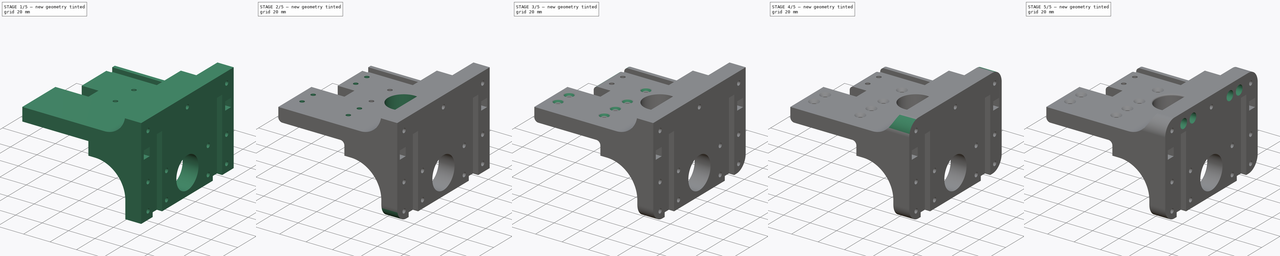
[diagram: build sequence overview — one tinted view per stage of 5, left to right]
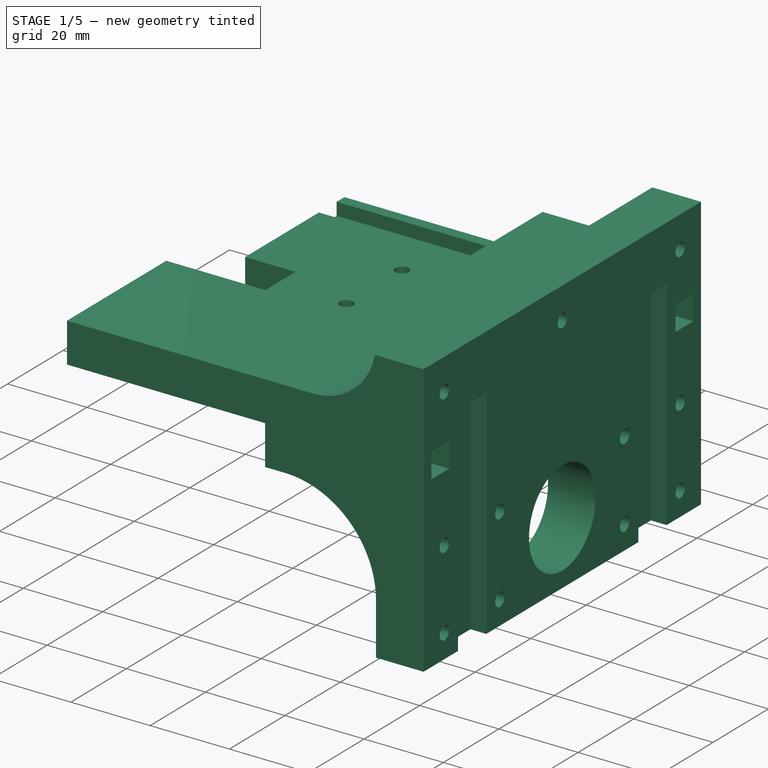
[diagram: stage 1 of 5 — iso view after this stage's code; geometry added in this stage tinted green]
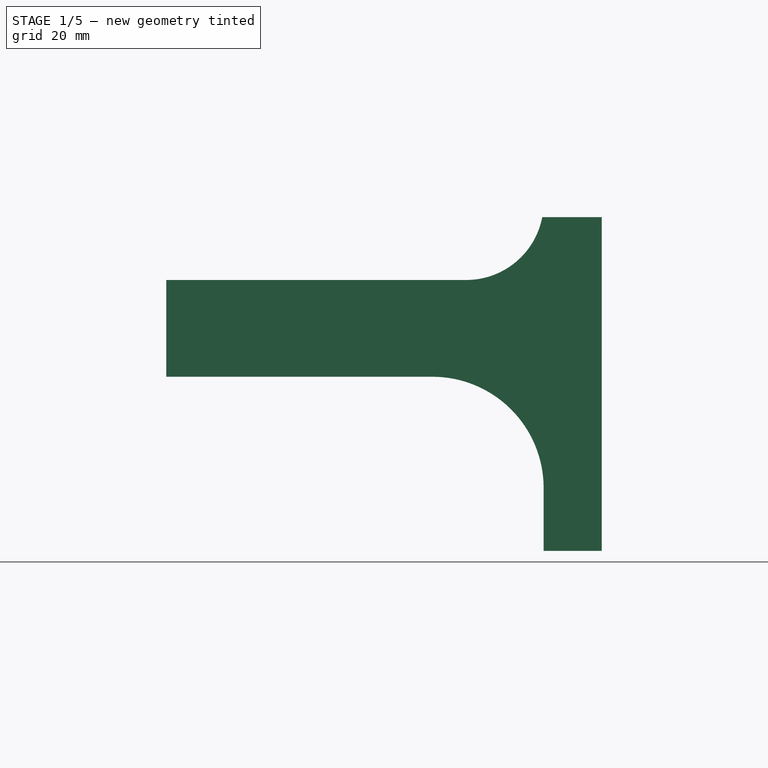
[diagram: stage 1 of 5 — front view after this stage's code; geometry added in this stage tinted green]
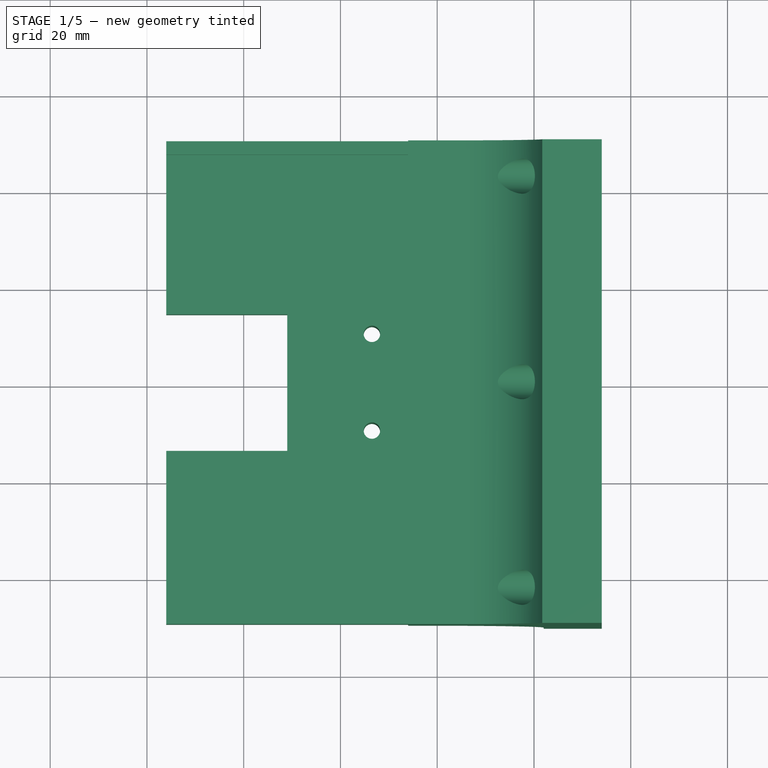
[diagram: stage 1 of 5 — top view after this stage's code; geometry added in this stage tinted green]
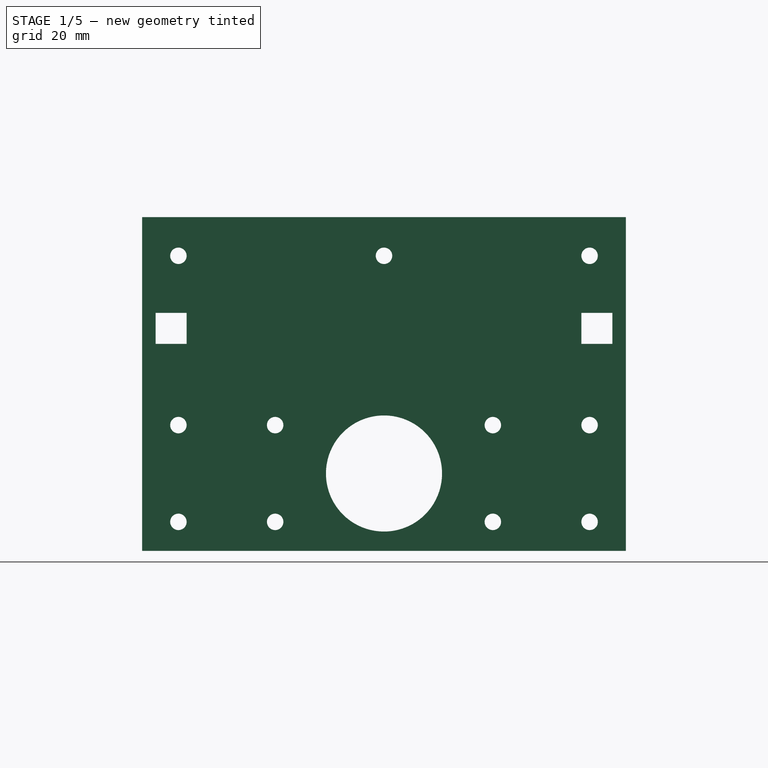
[diagram: stage 1 of 5 — right view after this stage's code; geometry added in this stage tinted green]
FCSTD DOCUMENT  (FreeCAD 0.16R6706 (Git))
Label: PelvisRotationalSym
License: All rights reserved
LicenseURL: http://en.wikipedia.org/wiki/All_rights_reserved
objects: PartDesign::Chamfer×17, PartDesign::Fillet×15, Sketcher::SketchObject×14, PartDesign::Pocket×13, PartDesign::Pad×1
note: 74 computed .brp shape members not serialized (recipe doc carries the construction recipe); baked Part::Feature solids carry a one-line shape summary decoded from their .brp

FEATURE [Sketcher::SketchObject] Sketch001  label="Base Geom"
  Placement = pos=(-86,0,0) rot=(0.57735,-0.57735,-0.57735;2.0944rad)
  sketch-geometry (43):
    g0: LineSegment [constr] StartX=-47.2 StartY=9.2 StartZ=0 EndX=-40.8 EndY=9.2 EndZ=0
    g1: LineSegment [constr] StartX=-40.8 StartY=9.2 StartZ=0 EndX=-40.8 EndY=2.8 EndZ=0
    g2: LineSegment [constr] StartX=-40.8 StartY=2.8 StartZ=0 EndX=-47.2 EndY=2.8 EndZ=0
    g3: LineSegment [constr] StartX=-47.2 StartY=2.8 StartZ=0 EndX=-47.2 EndY=9.2 EndZ=0
    g4: LineSegment [constr] StartX=40.8 StartY=9.2 StartZ=0 EndX=47.2 EndY=9.2 EndZ=0
    g5: LineSegment [constr] StartX=47.2 StartY=9.2 StartZ=0 EndX=47.2 EndY=2.8 EndZ=0
    g6: LineSegment [constr] StartX=47.2 StartY=2.8 StartZ=0 EndX=40.8 EndY=2.8 EndZ=0
    g7: LineSegment [constr] StartX=40.8 StartY=2.8 StartZ=0 EndX=40.8 EndY=9.2 EndZ=0
    g8: GeomPoint [constr] X=-44 Y=6 Z=0
    g9: GeomPoint [constr] X=44 Y=6 Z=0
    g10: Circle [constr] CenterX=-30 CenterY=21 CenterZ=0 NormalX=0 NormalY=0 NormalZ=1 Radius=1.7
    g11: Circle [constr] CenterX=30 CenterY=21 CenterZ=0 NormalX=0 NormalY=0 NormalZ=1 Radius=1.7
    g12: Circle [constr] CenterX=20 CenterY=21 CenterZ=0 NormalX=0 NormalY=0 NormalZ=1 Radius=1.7
    g13: Circle [constr] CenterX=-20 CenterY=21 CenterZ=0 NormalX=0 NormalY=0 NormalZ=1 Radius=1.7
    g14: LineSegment [constr] StartX=-30 StartY=21 StartZ=0 EndX=30 EndY=21 EndZ=0
    g15: LineSegment StartX=-50 StartY=29 StartZ=0 EndX=50 EndY=29 EndZ=0
    g16: LineSegment StartX=50 StartY=29 StartZ=0 EndX=50 EndY=-40 EndZ=0
    g17: LineSegment StartX=50 StartY=-40 StartZ=0 EndX=-50 EndY=-40 EndZ=0
    g18: LineSegment StartX=-50 StartY=-40 StartZ=0 EndX=-50 EndY=29 EndZ=0
    g19: Circle CenterX=0 CenterY=-24 CenterZ=0 NormalX=0 NormalY=0 NormalZ=1 Radius=12
    g20: Circle [constr] CenterX=10 CenterY=12 CenterZ=0 NormalX=0 NormalY=0 NormalZ=1 Radius=8
    g21: Circle CenterX=42.5 CenterY=-14 CenterZ=0 NormalX=0 NormalY=0 NormalZ=1 Radius=1.7
    g22: Circle CenterX=42.5 CenterY=-34 CenterZ=0 NormalX=0 NormalY=0 NormalZ=1 Radius=1.7
    g23: Circle CenterX=22.5 CenterY=-14 CenterZ=0 NormalX=0 NormalY=0 NormalZ=1 Radius=1.7
    g24: Circle CenterX=22.5 CenterY=-34 CenterZ=0 NormalX=0 NormalY=0 NormalZ=1 Radius=1.7
    g25: Circle CenterX=-22.5 CenterY=-14 CenterZ=0 NormalX=0 NormalY=0 NormalZ=1 Radius=1.7
    g26: Circle CenterX=-42.5 CenterY=-14 CenterZ=0 NormalX=0 NormalY=0 NormalZ=1 Radius=1.7
    g27: Circle CenterX=-42.5 CenterY=-34 CenterZ=0 NormalX=0 NormalY=0 NormalZ=1 Radius=1.7
    g28: Circle CenterX=-22.5 CenterY=-34 CenterZ=0 NormalX=0 NormalY=0 NormalZ=1 Radius=1.7
    g29: LineSegment [constr] StartX=42.5 StartY=-14 StartZ=0 EndX=-42.5 EndY=-14 EndZ=0
    g30: LineSegment [constr] StartX=-42.5 StartY=-14 StartZ=0 EndX=-42.5 EndY=-34 EndZ=0
    g31: LineSegment [constr] StartX=-42.5 StartY=-34 StartZ=0 EndX=42.5 EndY=-34 EndZ=0
    g32: LineSegment [constr] StartX=42.5 StartY=-34 StartZ=0 EndX=42.5 EndY=-14 EndZ=0
    g33: LineSegment [constr] StartX=-22.5 StartY=-34 StartZ=0 EndX=-22.5 EndY=-14 EndZ=0
    g34: LineSegment [constr] StartX=22.5 StartY=-14 StartZ=0 EndX=22.5 EndY=-34 EndZ=0
    g35: GeomPoint [constr] X=-32.5 Y=-14 Z=0
    g36: GeomPoint [constr] X=32.5 Y=-14 Z=0
    g37: Circle CenterX=-42.5 CenterY=21 CenterZ=0 NormalX=0 NormalY=0 NormalZ=1 Radius=1.7
    g38: Circle CenterX=42.5 CenterY=21 CenterZ=0 NormalX=0 NormalY=0 NormalZ=1 Radius=1.7
    g39: LineSegment [constr] StartX=42.5 StartY=-14 StartZ=0 EndX=42.5 EndY=21 EndZ=0
    g40: LineSegment [constr] StartX=30 StartY=21 StartZ=0 EndX=42.5 EndY=21 EndZ=0
    g41: Circle CenterX=0 CenterY=21 CenterZ=0 NormalX=0 NormalY=0 NormalZ=1 Radius=1.7
    g42: Circle [constr] CenterX=-10 CenterY=12 CenterZ=0 NormalX=0 NormalY=0 NormalZ=1 Radius=8
  constraints (107):
    c: Coincident(g0,g1)
    c: Coincident(g1,g2)
    c: Coincident(g2,g3)
    c: Coincident(g3,g0)
    c: Horizontal(g0)
    c: Horizontal(g2)
    c: Vertical(g1)
    c: Vertical(g3)
    c: Coincident(g4,g5)
    c: Coincident(g5,g6)
    c: Coincident(g6,g7)
    c: Coincident(g7,g4)
    c: Horizontal(g4)
    c: Horizontal(g6)
    c: Vertical(g5)
    c: Vertical(g7)
    c: Symmetric(g4,g0,g-2)
    c: Symmetric(g6,g1,g-2)
    c: Equal(g7,g4)
    c: DistanceY(g5,g5) = 6.4
    c: Symmetric(g2,g0,g8)
    c: Symmetric(g4,g6,g9)
    c: DistanceX(g8,g9) = 88
    c: Radius(g10) = 1.7
    c: Equal(g10,g13)
    c: Equal(g10,g12)
    c: Equal(g10,g11)
    c: Coincident(g14,g11)
    c: PointOnObject(g12,g14)
    c: PointOnObject(g13,g14)
    c: Coincident(g10,g14)
    c: Symmetric(g13,g12,g-2)
    c: DistanceX(g13,g12) = 40
    c: DistanceX(g10,g11) = 60
    c: Symmetric(g10,g11,g-2)
    c: DistanceY(g8,g10) = 15
    c: Coincident(g15,g16)
    c: Coincident(g16,g17)
    c: Coincident(g17,g18)
    c: Coincident(g18,g15)
    c: Horizontal(g15)
    c: Horizontal(g17)
    c: Vertical(g16)
    c: Vertical(g18)
    c: DistanceY(g-1,g8) = 6
    c: Symmetric(g17,g16,g-2)
    c: DistanceX(g17,g16) = 100
    c: DistanceY(g16,g-1) = 40
    c: DistanceY(g-1,g15) = 29
    c: PointOnObject(g19,g-2)
    c: DistanceY(g-1,g20) = 12
    c: Radius(g20) = 8
    c: DistanceY(g19,g-1) = 24
    c: Radius(g19) = 12
    c: Coincident(g29,g30)
    c: Coincident(g30,g31)
    c: Coincident(g31,g32)
    c: Coincident(g32,g29)
    c: Horizontal(g29)
    c: Vertical(g30)
    c: Vertical(g32)
    c: Coincident(g29,g21)
    c: Coincident(g30,g27)
    c: Coincident(g29,g26)
    c: Coincident(g22,g31)
    c: Coincident(g33,g28)
    c: Coincident(g33,g25)
    c: Vertical(g33)
    c: Coincident(g34,g23)
    c: Coincident(g34,g24)
    c: Vertical(g34)
    c: PointOnObject(g24,g31)
    c: PointOnObject(g23,g29)
    c: PointOnObject(g25,g29)
    c: PointOnObject(g28,g31)
    c: Radius(g27) = 1.7
    c: Equal(g27,g26)
    c: Equal(g27,g25)
    c: Equal(g27,g28)
    c: Equal(g27,g23)
    c: Equal(g27,g24)
    c: Equal(g27,g21)
    c: Equal(g27,g22)
    c: Symmetric(g28,g24,g-2)
    c: Symmetric(g27,g22,g-2)
    c: DistanceX(g24,g22) = 20
    c: DistanceY(g22,g21) = 20
    c: Symmetric(g25,g26,g35)
    c: Symmetric(g21,g23,g36)
    c: DistanceX(g35,g36) = 65
    c: DistanceY(g25,g-1) = 14
    c: Vertical(g39)
    c: Coincident(g21,g39)
    c: Coincident(g38,g39)
    c: Symmetric(g37,g38,g-2)
    c: Radius(g38) = 1.7
    c: Equal(g38,g37)
    c: Coincident(g40,g11)
    c: Coincident(g40,g38)
    c: Horizontal(g40)
    c: DistanceY(g21,g38) = 35
    c: Equal(g41,g12)
    c: Equal(g42,g20)
    c: Symmetric(g42,g20,g-2)
    c: DistanceX(g42,g20) = 20
    c: PointOnObject(g41,g-2)
    c: PointOnObject(g41,g14)
FEATURE [PartDesign::Pad] Pad
  Length = 90
  Length2 = 100
  Placement = pos=(-86,0,0) rot=(0.57735,-0.57735,-0.57735;2.0944rad)
  Sketch = -> Sketch001
  Type = 0
FEATURE [Sketcher::SketchObject] Sketch004  label="Grooves"
  Placement = pos=(-86,0,0) rot=(-0.57735,0.57735,-0.57735;2.0944rad)
  Support = -> Pad [Face17]
  sketch-geometry (12):
    g0: LineSegment StartX=-37.6 StartY=85 StartZ=0 EndX=-27.4 EndY=85 EndZ=0
    g1: LineSegment StartX=-27.4 StartY=85 StartZ=0 EndX=-27.4 EndY=-15 EndZ=0
    g2: LineSegment StartX=-27.4 StartY=-15 StartZ=0 EndX=-37.6 EndY=-15 EndZ=0
    g3: LineSegment StartX=-37.6 StartY=-15 StartZ=0 EndX=-37.6 EndY=85 EndZ=0
    g4: LineSegment StartX=27.4 StartY=85 StartZ=0 EndX=37.6 EndY=85 EndZ=0
    g5: LineSegment StartX=37.6 StartY=85 StartZ=0 EndX=37.6 EndY=-15 EndZ=0
    g6: LineSegment StartX=37.6 StartY=-15 StartZ=0 EndX=27.4 EndY=-15 EndZ=0
    g7: LineSegment StartX=27.4 StartY=-15 StartZ=0 EndX=27.4 EndY=85 EndZ=0
    g8: LineSegment [constr] StartX=-27.4 StartY=-15 StartZ=0 EndX=27.4 EndY=-15 EndZ=0
    g9: LineSegment [constr] StartX=-27.4 StartY=85 StartZ=0 EndX=27.4 EndY=85 EndZ=0
    g10: GeomPoint [constr] X=-32.5 Y=85 Z=0
    g11: GeomPoint [constr] X=32.5 Y=85 Z=0
  constraints (30):
    c: Coincident(g0,g1)
    c: Coincident(g1,g2)
    c: Coincident(g2,g3)
    c: Coincident(g3,g0)
    c: Horizontal(g0)
    c: Horizontal(g2)
    c: Vertical(g1)
    c: Vertical(g3)
    c: Coincident(g4,g5)
    c: Coincident(g5,g6)
    c: Coincident(g6,g7)
    c: Coincident(g7,g4)
    c: Horizontal(g4)
    c: Horizontal(g6)
    c: Vertical(g5)
    c: Vertical(g7)
    c: DistanceX(g0,g0) = 10.2
    c: DistanceX(g4,g4) = 10.2
    c: Coincident(g8,g1)
    c: Horizontal(g8)
    c: Coincident(g6,g8)
    c: Coincident(g9,g0)
    c: Horizontal(g9)
    c: Coincident(g9,g4)
    c: DistanceY(g1,g-1) = 15
    c: DistanceY(g2,g0) = 100
    c: Symmetric(g4,g4,g11)
    c: Symmetric(g0,g0,g10)
    c: DistanceX(g10,g11) = 65
    c: Symmetric(g4,g0,g-2)
FEATURE [PartDesign::Pocket] Pocket
  Length = 4
  Placement = pos=(-86,0,0) rot=(0.57735,-0.57735,-0.57735;2.0944rad)
  Sketch = -> Sketch004
  Type = 0
FEATURE [Sketcher::SketchObject] Sketch  label="CF holes"
  Placement = pos=(-86,0,0) rot=(0.57735,-0.57735,0.57735;4.18879rad)
  Support = -> Pocket [Face4]
  sketch-geometry (10):
    g0: LineSegment StartX=-47.2 StartY=-2.8 StartZ=0 EndX=-40.8 EndY=-2.8 EndZ=0
    g1: LineSegment StartX=-40.8 StartY=-2.8 StartZ=0 EndX=-40.8 EndY=-9.2 EndZ=0
    g2: LineSegment StartX=-40.8 StartY=-9.2 StartZ=0 EndX=-47.2 EndY=-9.2 EndZ=0
    g3: LineSegment StartX=-47.2 StartY=-9.2 StartZ=0 EndX=-47.2 EndY=-2.8 EndZ=0
    g4: LineSegment StartX=40.8 StartY=-2.8 StartZ=0 EndX=47.2 EndY=-2.8 EndZ=0
    g5: LineSegment StartX=47.2 StartY=-2.8 StartZ=0 EndX=47.2 EndY=-9.2 EndZ=0
    g6: LineSegment StartX=47.2 StartY=-9.2 StartZ=0 EndX=40.8 EndY=-9.2 EndZ=0
    g7: LineSegment StartX=40.8 StartY=-9.2 StartZ=0 EndX=40.8 EndY=-2.8 EndZ=0
    g8: GeomPoint [constr] X=-44 Y=-6 Z=0
    g9: GeomPoint [constr] X=44 Y=-6 Z=0
  constraints (25):
    c: Coincident(g0,g1)
    c: Coincident(g1,g2)
    c: Coincident(g2,g3)
    c: Coincident(g3,g0)
    c: Horizontal(g0)
    c: Horizontal(g2)
    c: Vertical(g1)
    c: Vertical(g3)
    c: Coincident(g4,g5)
    c: Coincident(g5,g6)
    c: Coincident(g6,g7)
    c: Coincident(g7,g4)
    c: Horizontal(g4)
    c: Horizontal(g6)
    c: Vertical(g5)
    c: Vertical(g7)
    c: Equal(g2,g1)
    c: Equal(g7,g6)
    c: Symmetric(g2,g0,g8)
    c: Symmetric(g4,g6,g9)
    c: Symmetric(g8,g9,g-2)
    c: DistanceX(g8,g9) = 88
    c: DistanceY(g8,g-1) = 6
    c: DistanceY(g3,g3) = 6.4
    c: Equal(g5,g1)
FEATURE [PartDesign::Pocket] Pocket001
  Length = 50
  Placement = pos=(-86,0,0) rot=(0.57735,-0.57735,-0.57735;2.0944rad)
  Sketch = -> Sketch
  Type = 1
FEATURE [Sketcher::SketchObject] Sketch005  label="sidecut pass"
  Placement = pos=(-86,50,0) rot=(0.57735,-0.57735,-0.57735;4.18879rad)
  Support = -> Pocket001 [Face2]
  sketch-geometry (26):
    g0: LineSegment StartX=54 StartY=90 StartZ=0 EndX=54 EndY=12 EndZ=0
    g1: LineSegment StartX=54 StartY=12 StartZ=0 EndX=27 EndY=12 EndZ=0
    g2: LineSegment StartX=4 StartY=35 StartZ=0 EndX=4 EndY=90 EndZ=0
    g3: LineSegment StartX=-16 StartY=90 StartZ=0 EndX=-16 EndY=28 EndZ=0
    g4: LineSegment StartX=-32 StartY=12 StartZ=0 EndX=-66 EndY=12 EndZ=0
    g5: LineSegment StartX=-66 StartY=12 StartZ=0 EndX=-66 EndY=90 EndZ=0
    g6: LineSegment [constr] StartX=-16 StartY=90 StartZ=0 EndX=4 EndY=90 EndZ=0
    g7: ArcOfCircle CenterX=27 CenterY=35 CenterZ=0 NormalX=0 NormalY=0 NormalZ=1 Radius=23 StartAngle=3.14159 EndAngle=4.71239
    g8: ArcOfCircle CenterX=-32 CenterY=28 CenterZ=0 NormalX=0 NormalY=0 NormalZ=1 Radius=16 StartAngle=4.71239 EndAngle=6.28319
    g9: LineSegment [constr] StartX=-32 StartY=12 StartZ=0 EndX=27 EndY=12 EndZ=0
    g10: LineSegment StartX=-66 StartY=90 StartZ=0 EndX=-16 EndY=90 EndZ=0
    g11: LineSegment StartX=4 StartY=90 StartZ=0 EndX=54 EndY=90 EndZ=0
    g12: LineSegment [constr] StartX=-16 StartY=90 StartZ=0 EndX=-16 EndY=90 EndZ=0
    g13: LineSegment [constr] StartX=4 StartY=90 StartZ=0 EndX=4 EndY=90 EndZ=0
    g14: LineSegment [constr] StartX=-16 StartY=90 StartZ=0 EndX=4 EndY=90 EndZ=0
    g15: LineSegment [constr] StartX=-66 StartY=12 StartZ=0 EndX=-66 EndY=-12 EndZ=0
    g16: LineSegment [constr] StartX=-16 StartY=73 StartZ=0 EndX=-16 EndY=12 EndZ=0
    g17: LineSegment [constr] StartX=-16 StartY=12 StartZ=0 EndX=-16 EndY=0 EndZ=0
    g18: LineSegment [constr] StartX=-16 StartY=0 StartZ=0 EndX=-2e-12 EndY=0 EndZ=0
    g19: LineSegment [constr] StartX=-72 StartY=-12 StartZ=0 EndX=54 EndY=-12 EndZ=0
    g20: LineSegment [constr] StartX=54 StartY=-12 StartZ=0 EndX=54 EndY=-1 EndZ=0
    g21: LineSegment [constr] StartX=54 StartY=-1 StartZ=0 EndX=-72 EndY=-1 EndZ=0
    g22: LineSegment [constr] StartX=-72 StartY=-1 StartZ=0 EndX=-72 EndY=-12 EndZ=0
    g23: LineSegment [constr] StartX=54 StartY=12 StartZ=0 EndX=54 EndY=-3.1e-11 EndZ=0
    g24: LineSegment [constr] StartX=54 StartY=-1 StartZ=0 EndX=54 EndY=-3.1e-11 EndZ=0
    g25: LineSegment [constr] StartX=14.2584 StartY=90 StartZ=0 EndX=14.2584 EndY=35 EndZ=0
  constraints (71):
    c: Coincident(g0,g1)
    c: Horizontal(g1)
    c: Vertical(g0)
    c: Vertical(g2)
    c: Coincident(g4,g5)
    c: Horizontal(g4)
    c: Vertical(g3)
    c: Vertical(g5)
    c: Horizontal(g6)
    c: Tangent(g2,g7) = 1.5708
    c: Tangent(g1,g7) = 1.5708
    c: Tangent(g3,g8) = 1.5708
    c: Tangent(g4,g8) = 1.5708
    c: Coincident(g9,g4)
    c: Coincident(g9,g1)
    c: Horizontal(g9)
    c: DistanceY(g-1,g1) = 12
    c: Coincident(g10,g5)
    c: Horizontal(g10)
    c: Horizontal(g11)
    c: Coincident(g12,g6)
    c: Coincident(g12,g3)
    c: Vertical(g12)
    c: Coincident(g13,g6)
    c: Coincident(g13,g2)
    c: Vertical(g13)
    c: DistanceX(g2,g7) = 23
    c: DistanceX(g8,g3) = 16
    c: Coincident(g0,g11)
    c: Coincident(g14,g10)
    c: Horizontal(g14)
    c: Coincident(g14,g11)
    c: DistanceY(g15,g4) = 24
    c: Coincident(g15,g4)
    c: Vertical(g15)
    c: DistanceX(g11,g11) = 50
    c: PointOnObject(g16,g3)
    c: PointOnObject(g16,g9)
    c: Vertical(g16)
    c: DistanceX(g6,g6) = 20
    c: Coincident(g17,g16)
    c: PointOnObject(g17,g-1)
    c: Vertical(g17)
    c: Coincident(g18,g17)
    c: Coincident(g18,g-1)
    c: DistanceX(g18,g18) = 16
    c: Coincident(g19,g20)
    c: Coincident(g20,g21)
    c: Coincident(g21,g22)
    c: Coincident(g22,g19)
    c: Horizontal(g19)
    c: Horizontal(g21)
    c: Vertical(g20)
    c: Vertical(g22)
    c: Coincident(g23,g0)
    c: PointOnObject(g23,g-1)
    c: Vertical(g23)
    c: Coincident(g24,g20)
    c: Coincident(g24,g23)
    c: DistanceY(g24,g24) = 1
    c: Vertical(g24)
    c: Equal(g10,g11)
    c: PointOnObject(g6,g14)
    c: PointOnObject(g2,g14)
    c: PointOnObject(g3,g6)
    c: PointOnObject(g10,g3)
    c: PointOnObject(g11,g2)
    c: DistanceY(g23,g0) = 90
    c: PointOnObject(g25,g11)
    c: Vertical(g25)
    c: DistanceY(g25,g25) = 55
FEATURE [PartDesign::Pocket] Pocket002
  Length = 5
  Placement = pos=(-86,0,0) rot=(0.57735,-0.57735,-0.57735;2.0944rad)
  Sketch = -> Sketch005
  Type = 1
FEATURE [Sketcher::SketchObject] Sketch007  label="counter sunk holes from above"
  Placement = pos=(-176,0,0) rot=(0.57735,-0.57735,-0.57735;2.0944rad)
  Support = -> Pocket002 [Face36]
  sketch-geometry (43):
    g0: LineSegment [constr] StartX=-47.2 StartY=9.2 StartZ=0 EndX=-40.8 EndY=9.2 EndZ=0
    g1: LineSegment [constr] StartX=-40.8 StartY=9.2 StartZ=0 EndX=-40.8 EndY=2.8 EndZ=0
    g2: LineSegment [constr] StartX=-40.8 StartY=2.8 StartZ=0 EndX=-47.2 EndY=2.8 EndZ=0
    g3: LineSegment [constr] StartX=-47.2 StartY=2.8 StartZ=0 EndX=-47.2 EndY=9.2 EndZ=0
    g4: LineSegment [constr] StartX=40.8 StartY=9.2 StartZ=0 EndX=47.2 EndY=9.2 EndZ=0
    g5: LineSegment [constr] StartX=47.2 StartY=9.2 StartZ=0 EndX=47.2 EndY=2.8 EndZ=0
    g6: LineSegment [constr] StartX=47.2 StartY=2.8 StartZ=0 EndX=40.8 EndY=2.8 EndZ=0
    g7: LineSegment [constr] StartX=40.8 StartY=2.8 StartZ=0 EndX=40.8 EndY=9.2 EndZ=0
    g8: GeomPoint [constr] X=-44 Y=6 Z=0
    g9: GeomPoint [constr] X=44 Y=6 Z=0
    g10: Circle [constr] CenterX=-30 CenterY=21 CenterZ=0 NormalX=0 NormalY=0 NormalZ=1 Radius=1.7
    g11: Circle [constr] CenterX=30 CenterY=21 CenterZ=0 NormalX=0 NormalY=0 NormalZ=1 Radius=1.7
    g12: Circle [constr] CenterX=20 CenterY=21 CenterZ=0 NormalX=0 NormalY=0 NormalZ=1 Radius=1.7
    g13: Circle [constr] CenterX=-20 CenterY=21 CenterZ=0 NormalX=0 NormalY=0 NormalZ=1 Radius=1.7
    g14: LineSegment [constr] StartX=-30 StartY=21 StartZ=0 EndX=30 EndY=21 EndZ=0
    g15: LineSegment [constr] StartX=-50 StartY=29 StartZ=0 EndX=50 EndY=29 EndZ=0
    g16: LineSegment [constr] StartX=50 StartY=29 StartZ=0 EndX=50 EndY=-40 EndZ=0
    g17: LineSegment [constr] StartX=50 StartY=-40 StartZ=0 EndX=-50 EndY=-40 EndZ=0
    g18: LineSegment [constr] StartX=-50 StartY=-40 StartZ=0 EndX=-50 EndY=29 EndZ=0
    g19: Circle [constr] CenterX=0 CenterY=-24 CenterZ=0 NormalX=0 NormalY=0 NormalZ=1 Radius=12
    g20: Circle [constr] CenterX=10 CenterY=12 CenterZ=0 NormalX=0 NormalY=0 NormalZ=1 Radius=8
    g21: Circle CenterX=42.5 CenterY=-14 CenterZ=0 NormalX=0 NormalY=0 NormalZ=1 Radius=3.6
    g22: Circle CenterX=42.5 CenterY=-34 CenterZ=0 NormalX=0 NormalY=0 NormalZ=1 Radius=3.6
    g23: Circle CenterX=22.5 CenterY=-14 CenterZ=0 NormalX=0 NormalY=0 NormalZ=1 Radius=3.6
    g24: Circle CenterX=22.5 CenterY=-34 CenterZ=0 NormalX=0 NormalY=0 NormalZ=1 Radius=3.6
    g25: Circle CenterX=-22.5 CenterY=-14 CenterZ=0 NormalX=0 NormalY=0 NormalZ=1 Radius=3.6
    g26: Circle CenterX=-42.5 CenterY=-14 CenterZ=0 NormalX=0 NormalY=0 NormalZ=1 Radius=3.6
    g27: Circle CenterX=-42.5 CenterY=-34 CenterZ=0 NormalX=0 NormalY=0 NormalZ=1 Radius=3.6
    g28: Circle CenterX=-22.5 CenterY=-34 CenterZ=0 NormalX=0 NormalY=0 NormalZ=1 Radius=3.6
    g29: LineSegment [constr] StartX=42.5 StartY=-14 StartZ=0 EndX=-42.5 EndY=-14 EndZ=0
    g30: LineSegment [constr] StartX=-42.5 StartY=-14 StartZ=0 EndX=-42.5 EndY=-34 EndZ=0
    g31: LineSegment [constr] StartX=-42.5 StartY=-34 StartZ=0 EndX=42.5 EndY=-34 EndZ=0
    g32: LineSegment [constr] StartX=42.5 StartY=-34 StartZ=0 EndX=42.5 EndY=-14 EndZ=0
    g33: LineSegment [constr] StartX=-22.5 StartY=-34 StartZ=0 EndX=-22.5 EndY=-14 EndZ=0
    g34: LineSegment [constr] StartX=22.5 StartY=-14 StartZ=0 EndX=22.5 EndY=-34 EndZ=0
    g35: GeomPoint [constr] X=-32.5 Y=-14 Z=0
    g36: GeomPoint [constr] X=32.5 Y=-14 Z=0
    g37: Circle CenterX=-42.5 CenterY=21 CenterZ=0 NormalX=0 NormalY=0 NormalZ=1 Radius=3.6
    g38: Circle CenterX=42.5 CenterY=21 CenterZ=0 NormalX=0 NormalY=0 NormalZ=1 Radius=3.6
    g39: LineSegment [constr] StartX=42.5 StartY=-14 StartZ=0 EndX=42.5 EndY=21 EndZ=0
    g40: LineSegment [constr] StartX=30 StartY=21 StartZ=0 EndX=42.5 EndY=21 EndZ=0
    g41: Circle CenterX=0 CenterY=21 CenterZ=0 NormalX=0 NormalY=0 NormalZ=1 Radius=3.6
    g42: Circle [constr] CenterX=-10 CenterY=12 CenterZ=0 NormalX=0 NormalY=0 NormalZ=1 Radius=8
  constraints (107):
    c: Coincident(g0,g1)
    c: Coincident(g1,g2)
    c: Coincident(g2,g3)
    c: Coincident(g3,g0)
    c: Horizontal(g0)
    c: Horizontal(g2)
    c: Vertical(g1)
    c: Vertical(g3)
    c: Coincident(g4,g5)
    c: Coincident(g5,g6)
    c: Coincident(g6,g7)
    c: Coincident(g7,g4)
    c: Horizontal(g4)
    c: Horizontal(g6)
    c: Vertical(g5)
    c: Vertical(g7)
    c: Symmetric(g4,g0,g-2)
    c: Symmetric(g6,g1,g-2)
    c: Equal(g7,g4)
    c: DistanceY(g5,g5) = 6.4
    c: Symmetric(g2,g0,g8)
    c: Symmetric(g4,g6,g9)
    c: DistanceX(g8,g9) = 88
    c: Radius(g10) = 1.7
    c: Equal(g10,g13)
    c: Equal(g10,g12)
    c: Equal(g10,g11)
    c: Coincident(g14,g11)
    c: PointOnObject(g12,g14)
    c: PointOnObject(g13,g14)
    c: Coincident(g10,g14)
    c: Symmetric(g13,g12,g-2)
    c: DistanceX(g13,g12) = 40
    c: DistanceX(g10,g11) = 60
    c: Symmetric(g10,g11,g-2)
    c: DistanceY(g8,g10) = 15
    c: Coincident(g15,g16)
    c: Coincident(g16,g17)
    c: Coincident(g17,g18)
    c: Coincident(g18,g15)
    c: Horizontal(g15)
    c: Horizontal(g17)
    c: Vertical(g16)
    c: Vertical(g18)
    c: DistanceY(g-1,g8) = 6
    c: Symmetric(g17,g16,g-2)
    c: DistanceX(g17,g16) = 100
    c: DistanceY(g16,g-1) = 40
    c: DistanceY(g-1,g15) = 29
    c: PointOnObject(g19,g-2)
    c: DistanceY(g-1,g20) = 12
    c: Radius(g20) = 8
    c: DistanceY(g19,g-1) = 24
    c: Radius(g19) = 12
    c: Coincident(g29,g30)
    c: Coincident(g30,g31)
    c: Coincident(g31,g32)
    c: Coincident(g32,g29)
    c: Horizontal(g29)
    c: Vertical(g30)
    c: Vertical(g32)
    c: Coincident(g29,g21)
    c: Coincident(g30,g27)
    c: Coincident(g29,g26)
    c: Coincident(g22,g31)
    c: Coincident(g33,g28)
    c: Coincident(g33,g25)
    c: Vertical(g33)
    c: Coincident(g34,g23)
    c: Coincident(g34,g24)
    c: Vertical(g34)
    c: PointOnObject(g24,g31)
    c: PointOnObject(g23,g29)
    c: PointOnObject(g25,g29)
    c: PointOnObject(g28,g31)
    c: Radius(g27) = 3.6
    c: Equal(g27,g26)
    c: Equal(g27,g25)
    c: Equal(g27,g28)
    c: Equal(g27,g23)
    c: Equal(g27,g24)
    c: Equal(g27,g21)
    c: Equal(g27,g22)
    c: Symmetric(g28,g24,g-2)
    c: Symmetric(g27,g22,g-2)
    c: DistanceX(g24,g22) = 20
    c: DistanceY(g22,g21) = 20
    c: Symmetric(g25,g26,g35)
    c: Symmetric(g21,g23,g36)
    c: DistanceX(g35,g36) = 65
    c: DistanceY(g25,g-1) = 14
    c: Vertical(g39)
    c: Coincident(g21,g39)
    c: Coincident(g38,g39)
    c: Symmetric(g37,g38,g-2)
    c: Equal(g38,g37)
    c: Coincident(g40,g11)
    c: Coincident(g40,g38)
    c: Horizontal(g40)
    c: DistanceY(g21,g38) = 35
    c: Equal(g42,g20)
    c: Symmetric(g42,g20,g-2)
    c: DistanceX(g42,g20) = 20
    c: PointOnObject(g41,g-2)
    c: PointOnObject(g41,g14)
    c: Equal(g38,g21)
    c: Equal(g37,g41)
FEATURE [PartDesign::Pocket] Pocket004
  Length = 85
  Placement = pos=(-86,0,0) rot=(0.57735,-0.57735,-0.57735;2.0944rad)
  Sketch = -> Sketch007
  Type = 0
FEATURE [Sketcher::SketchObject] Sketch008  label="relief above base hole"
  Placement = pos=(-86,0,-4) rot=(0.707107,-0.707107,0;3.14159rad)
  Support = -> Pocket004 [Face35]
  sketch-geometry (5):
    g0: LineSegment StartX=-15 StartY=98.2272 StartZ=0 EndX=15 EndY=98.2272 EndZ=0
    g1: LineSegment StartX=15 StartY=98.2272 StartZ=0 EndX=15 EndY=12 EndZ=0
    g2: LineSegment StartX=15 StartY=12 StartZ=0 EndX=-15 EndY=12 EndZ=0
    g3: LineSegment StartX=-15 StartY=12 StartZ=0 EndX=-15 EndY=98.2272 EndZ=0
    g4: LineSegment [constr] StartX=0 StartY=0 StartZ=0 EndX=0 EndY=12 EndZ=0
  constraints (14):
    c: Coincident(g0,g1)
    c: Coincident(g1,g2)
    c: Coincident(g2,g3)
    c: Coincident(g3,g0)
    c: Horizontal(g0)
    c: Horizontal(g2)
    c: Vertical(g1)
    c: Vertical(g3)
    c: Symmetric(g0,g0,g-2)
    c: Coincident(g4,g-1)
    c: Vertical(g4)
    c: PointOnObject(g4,g2)
    c: DistanceY(g4,g4) = 12
    c: DistanceX(g0,g0) = 30
FEATURE [PartDesign::Pocket] Pocket005
  Length = 5
  Placement = pos=(-86,0,0) rot=(0.57735,-0.57735,-0.57735;2.0944rad)
  Reversed = true
  Sketch = -> Sketch008
  Type = 1
FEATURE [Sketcher::SketchObject] Sketch011
  Placement = pos=(-176,0,0) rot=(0.57735,-0.57735,-0.57735;2.0944rad)
  Support = -> Pocket005 [Face36]
  sketch-geometry (8):
    g0: LineSegment [constr] StartX=0 StartY=0 StartZ=0 EndX=14 EndY=0 EndZ=0
    g1: LineSegment [constr] StartX=14 StartY=0 StartZ=0 EndX=14 EndY=6 EndZ=0
    g2: LineSegment [constr] StartX=14 StartY=6 StartZ=0 EndX=0 EndY=6 EndZ=0
    g3: LineSegment [constr] StartX=0 StartY=6 StartZ=0 EndX=0 EndY=0 EndZ=0
    g4: LineSegment StartX=14 StartY=6 StartZ=0 EndX=50 EndY=6 EndZ=0
    g5: LineSegment StartX=50 StartY=6 StartZ=0 EndX=50 EndY=-4 EndZ=0
    g6: LineSegment StartX=50 StartY=-4 StartZ=0 EndX=14 EndY=-4 EndZ=0
    g7: LineSegment StartX=14 StartY=-4 StartZ=0 EndX=14 EndY=6 EndZ=0
  constraints (22):
    c: Coincident(g0,g1)
    c: Coincident(g1,g2)
    c: Coincident(g2,g3)
    c: Coincident(g3,g0)
    c: Horizontal(g0)
    c: Horizontal(g2)
    c: Vertical(g1)
    c: Vertical(g3)
    c: Coincident(g0,g-1)
    c: Coincident(g4,g5)
    c: Coincident(g5,g6)
    c: Coincident(g6,g7)
    c: Coincident(g7,g4)
    c: Horizontal(g4)
    c: Horizontal(g6)
    c: Vertical(g5)
    c: Vertical(g7)
    c: DistanceX(g2,g2) = 14
    c: Coincident(g1,g4)
    c: DistanceX(g4,g4) = 36
    c: DistanceY(g5,g5) = 10
    c: DistanceY(g3,g3) = 6
FEATURE [PartDesign::Pocket] Pocket008
  Length = 50
  Placement = pos=(-86,0,0) rot=(0.57735,-0.57735,-0.57735;2.0944rad)
  Sketch = -> Sketch011
  Type = 0
FEATURE [Sketcher::SketchObject] Sketch010
  Placement = pos=(-176,0,0) rot=(0.57735,-0.57735,-0.57735;2.0944rad)
  Support = -> Pocket008 [Face38]
  sketch-geometry (8):
    g0: LineSegment StartX=-50 StartY=16 StartZ=0 EndX=-14 EndY=16 EndZ=0
    g1: LineSegment StartX=-14 StartY=16 StartZ=0 EndX=-14 EndY=6 EndZ=0
    g2: LineSegment StartX=-14 StartY=6 StartZ=0 EndX=-50 EndY=6 EndZ=0
    g3: LineSegment StartX=-50 StartY=6 StartZ=0 EndX=-50 EndY=16 EndZ=0
    g4: LineSegment [constr] StartX=-14 StartY=6 StartZ=0 EndX=0 EndY=6 EndZ=0
    g5: LineSegment [constr] StartX=0 StartY=6 StartZ=0 EndX=0 EndY=0 EndZ=0
    g6: LineSegment [constr] StartX=0 StartY=0 StartZ=0 EndX=-14 EndY=0 EndZ=0
    g7: LineSegment [constr] StartX=-14 StartY=0 StartZ=0 EndX=-14 EndY=6 EndZ=0
  constraints (22):
    c: Coincident(g0,g1)
    c: Coincident(g1,g2)
    c: Coincident(g2,g3)
    c: Coincident(g3,g0)
    c: Horizontal(g0)
    c: Horizontal(g2)
    c: Vertical(g1)
    c: Vertical(g3)
    c: Coincident(g4,g5)
    c: Coincident(g5,g6)
    c: Coincident(g6,g7)
    c: Coincident(g7,g4)
    c: Horizontal(g4)
    c: Horizontal(g6)
    c: Vertical(g5)
    c: Vertical(g7)
    c: Coincident(g4,g1)
    c: Coincident(g5,g-1)
    c: DistanceX(g4,g4) = 14
    c: DistanceY(g3,g3) = 10
    c: DistanceY(g5,g5) = 6
    c: DistanceX(g0,g0) = 36
FEATURE [PartDesign::Pocket] Pocket009
  Length = 50
  Placement = pos=(-86,0,0) rot=(0.57735,-0.57735,-0.57735;2.0944rad)
  Sketch = -> Sketch010
  Type = 0
FEATURE [Sketcher::SketchObject] Sketch013
  Placement = pos=(-86,0,-4) rot=(0.707107,-0.707107,0;3.14159rad)
  Support = -> Pocket009 [Face35]
  sketch-geometry (11):
    g0: LineSegment StartX=-14.2 StartY=65 StartZ=0 EndX=-14.2 EndY=91.3842 EndZ=0
    g1: LineSegment StartX=14.2 StartY=65 StartZ=0 EndX=14.2 EndY=91.3842 EndZ=0
    g2: LineSegment StartX=14.2 StartY=91.3842 StartZ=0 EndX=-14.2 EndY=91.3842 EndZ=0
    g3: LineSegment [constr] StartX=-10 StartY=82.5 StartZ=0 EndX=10 EndY=82.5 EndZ=0
    g4: LineSegment [constr] StartX=10 StartY=82.5 StartZ=0 EndX=10 EndY=47.5 EndZ=0
    g5: LineSegment [constr] StartX=10 StartY=47.5 StartZ=0 EndX=-10 EndY=47.5 EndZ=0
    g6: LineSegment [constr] StartX=-10 StartY=47.5 StartZ=0 EndX=-10 EndY=82.5 EndZ=0
    g7: GeomPoint [constr] X=10 Y=65 Z=0
    g8: LineSegment StartX=-14.2 StartY=65 StartZ=0 EndX=14.2 EndY=65 EndZ=0
    g9: Circle CenterX=-10 CenterY=47.5 CenterZ=0 NormalX=0 NormalY=0 NormalZ=1 Radius=1.7
    g10: Circle CenterX=10 CenterY=47.5 CenterZ=0 NormalX=0 NormalY=0 NormalZ=1 Radius=1.7
  constraints (29):
    c: Vertical(g0)
    c: Vertical(g1)
    c: Coincident(g2,g1)
    c: Coincident(g2,g0)
    c: Horizontal(g2)
    c: DistanceX(g2,g2) = 28.4
    c: Coincident(g3,g4)
    c: Coincident(g4,g5)
    c: Coincident(g5,g6)
    c: Coincident(g6,g3)
    c: Horizontal(g3)
    c: Horizontal(g5)
    c: Vertical(g4)
    c: Vertical(g6)
    c: Symmetric(g4,g5,g-2)
    c: PointOnObject(g7,g4)
    c: Symmetric(g3,g4,g7)
    c: DistanceY(g-1,g7) = 65
    c: DistanceY(g4,g4) = 35
    c: DistanceX(g3,g3) = 20
    c: Coincident(g8,g0)
    c: Coincident(g8,g1)
    c: Horizontal(g8)
    c: Symmetric(g1,g0,g-2)
    c: DistanceY(g-1,g1) = 65
    c: Coincident(g9,g5)
    c: Coincident(g10,g4)
    c: Radius(g9) = 1.7
    c: Equal(g9,g10)
FEATURE [PartDesign::Pocket] Pocket011
  Length = 40
  Placement = pos=(-86,0,0) rot=(0.57735,-0.57735,-0.57735;2.0944rad)
  Sketch = -> Sketch013
  Type = 1
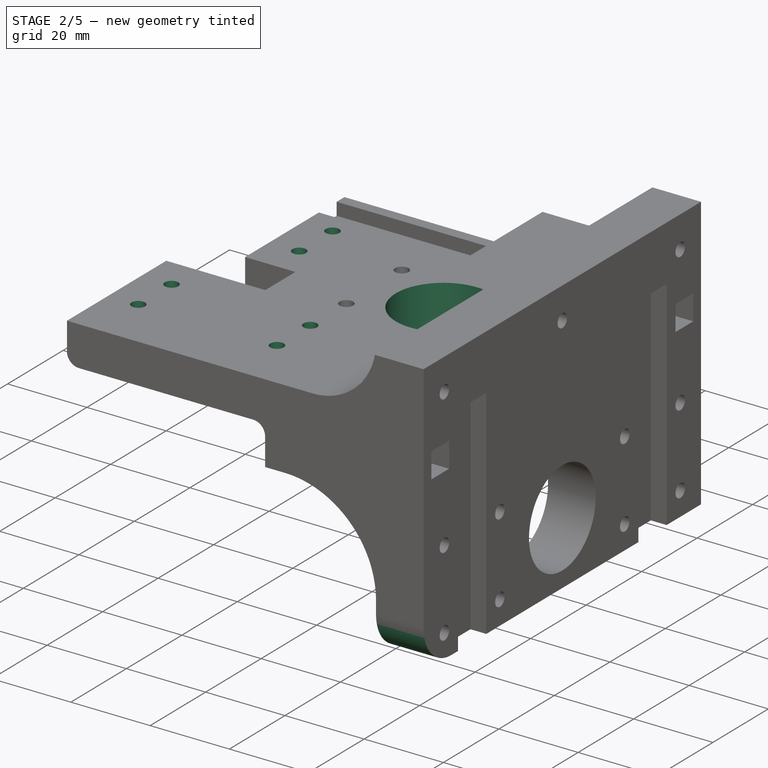
[diagram: stage 2 of 5 — iso view after this stage's code; geometry added in this stage tinted green]
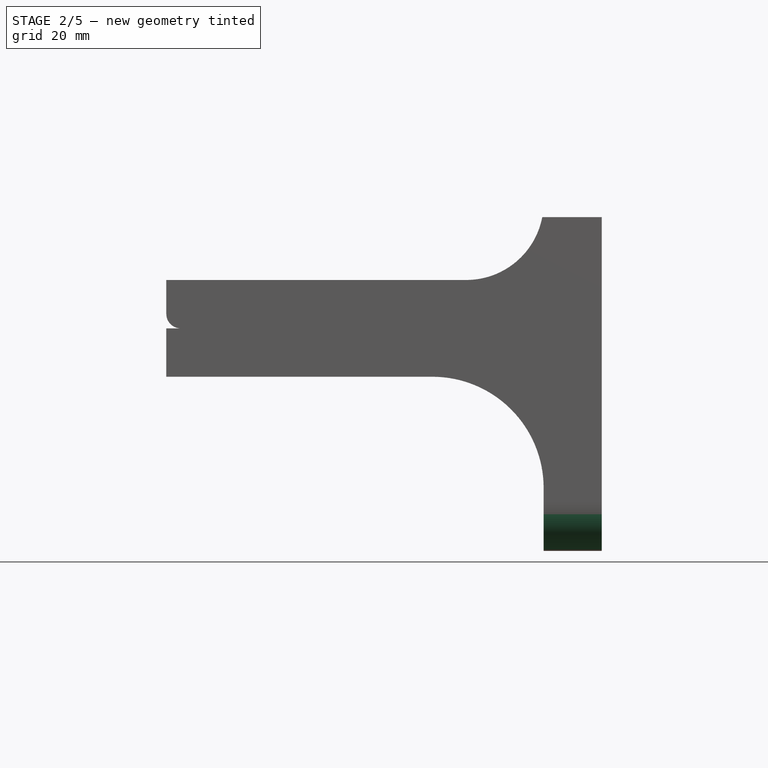
[diagram: stage 2 of 5 — front view after this stage's code; geometry added in this stage tinted green]
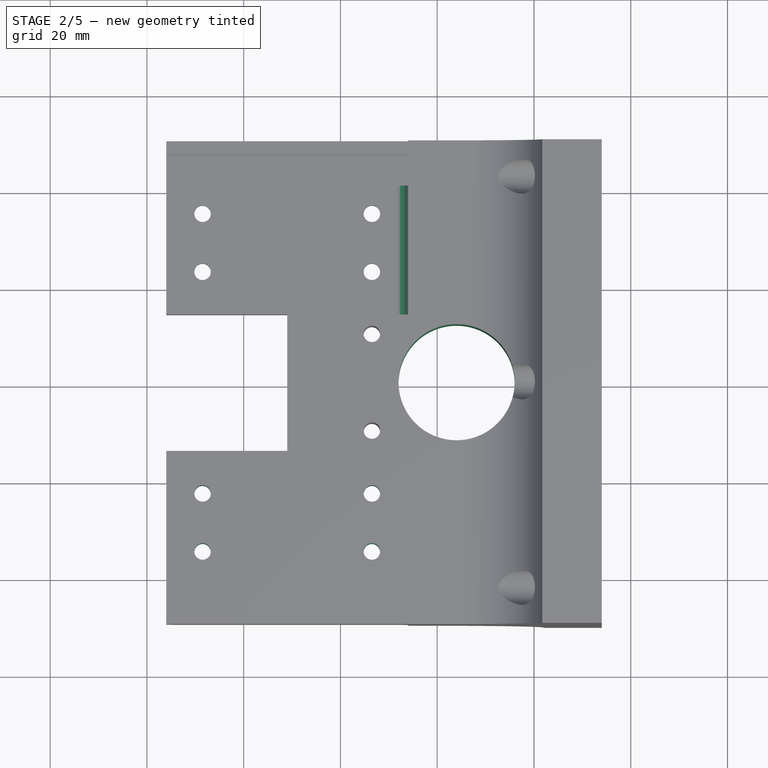
[diagram: stage 2 of 5 — top view after this stage's code; geometry added in this stage tinted green]
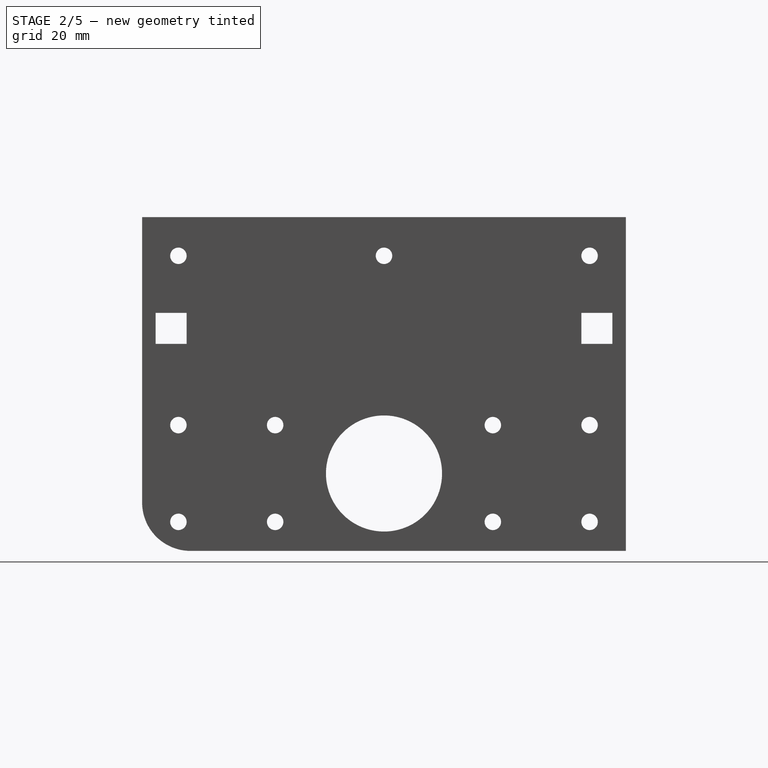
[diagram: stage 2 of 5 — right view after this stage's code; geometry added in this stage tinted green]
FEATURE [Sketcher::SketchObject] Sketch014
  Placement = pos=(-86,0,-4) rot=(0.707107,-0.707107,0;3.14159rad)
  Support = -> Pocket011 [Face35]
  sketch-geometry (21):
    g0: LineSegment [constr] StartX=0 StartY=82.5 StartZ=0 EndX=-23 EndY=82.5 EndZ=0
    g1: LineSegment [constr] StartX=-23 StartY=47.5 StartZ=0 EndX=0 EndY=47.5 EndZ=0
    g2: LineSegment [constr] StartX=0 StartY=47.5 StartZ=0 EndX=0 EndY=82.5 EndZ=0
    g3: LineSegment [constr] StartX=-23 StartY=82.5 StartZ=0 EndX=-35 EndY=82.5 EndZ=0
    g4: LineSegment [constr] StartX=-35 StartY=82.5 StartZ=0 EndX=-35 EndY=47.5 EndZ=0
    g5: LineSegment [constr] StartX=-35 StartY=47.5 StartZ=0 EndX=-23 EndY=47.5 EndZ=0
    g6: LineSegment [constr] StartX=0 StartY=82.5 StartZ=0 EndX=23 EndY=82.5 EndZ=0
    g7: LineSegment [constr] StartX=23 StartY=47.5 StartZ=0 EndX=0 EndY=47.5 EndZ=0
    g8: LineSegment [constr] StartX=0 StartY=47.5 StartZ=0 EndX=0 EndY=82.5 EndZ=0
    g9: LineSegment [constr] StartX=23 StartY=82.5 StartZ=0 EndX=35 EndY=82.5 EndZ=0
    g10: LineSegment [constr] StartX=35 StartY=82.5 StartZ=0 EndX=35 EndY=47.5 EndZ=0
    g11: LineSegment [constr] StartX=35 StartY=47.5 StartZ=0 EndX=23 EndY=47.5 EndZ=0
    g12: Circle CenterX=-35 CenterY=82.5 CenterZ=0 NormalX=0 NormalY=0 NormalZ=1 Radius=1.7
    g13: Circle CenterX=-23 CenterY=82.5 CenterZ=0 NormalX=0 NormalY=0 NormalZ=1 Radius=1.7
    g14: Circle CenterX=-35 CenterY=47.5 CenterZ=0 NormalX=0 NormalY=0 NormalZ=1 Radius=1.7
    g15: Circle CenterX=-23 CenterY=47.5 CenterZ=0 NormalX=0 NormalY=0 NormalZ=1 Radius=1.7
    g16: Circle CenterX=23 CenterY=47.5 CenterZ=0 NormalX=0 NormalY=0 NormalZ=1 Radius=1.7
    g17: Circle CenterX=35 CenterY=47.5 CenterZ=0 NormalX=0 NormalY=0 NormalZ=1 Radius=1.7
    g18: Circle CenterX=35 CenterY=82.5 CenterZ=0 NormalX=0 NormalY=0 NormalZ=1 Radius=1.7
    g19: Circle CenterX=23 CenterY=82.5 CenterZ=0 NormalX=0 NormalY=0 NormalZ=1 Radius=1.7
    g20: GeomPoint [constr] X=0 Y=65 Z=0
  constraints (53):
    c: Coincident(g1,g2)
    c: Coincident(g2,g0)
    c: Horizontal(g0)
    c: Horizontal(g1)
    c: Vertical(g2)
    c: PointOnObject(g0,g-2)
    c: Coincident(g3,g4)
    c: Coincident(g4,g5)
    c: Horizontal(g3)
    c: Horizontal(g5)
    c: Vertical(g4)
    c: Coincident(g3,g0)
    c: Coincident(g7,g8)
    c: Coincident(g8,g6)
    c: Horizontal(g6)
    c: Horizontal(g7)
    c: Vertical(g8)
    c: Coincident(g6,g0)
    c: Coincident(g7,g1)
    c: Equal(g6,g0)
    c: Coincident(g9,g10)
    c: Coincident(g10,g11)
    c: Horizontal(g9)
    c: Horizontal(g11)
    c: Vertical(g10)
    c: Coincident(g9,g6)
    c: Equal(g9,g3)
    c: DistanceY(g10,g10) = 35
    c: DistanceX(g9,g9) = 12
    c: DistanceX(g6,g6) = 23
    c: Coincident(g12,g3)
    c: Coincident(g13,g0)
    c: Coincident(g14,g4)
    c: Coincident(g17,g10)
    c: Coincident(g18,g9)
    c: Radius(g14) = 1.7
    c: Equal(g15,g13)
    c: Equal(g13,g12)
    c: Equal(g12,g14)
    c: Equal(g14,g19)
    c: Equal(g19,g18)
    c: Equal(g18,g17)
    c: Equal(g17,g16)
    c: Coincident(g19,g6)
    c: Coincident(g11,g7)
    c: Equal(g11,g9)
    c: Coincident(g5,g1)
    c: Coincident(g1,g15)
    c: Equal(g5,g3)
    c: Coincident(g16,g7)
    c: PointOnObject(g20,g2)
    c: Symmetric(g0,g1,g20)
    c: DistanceY(g-1,g20) = 65
FEATURE [PartDesign::Pocket] Pocket012
  Length = 5
  Placement = pos=(-86,0,0) rot=(0.57735,-0.57735,-0.57735;2.0944rad)
  Sketch = -> Sketch014
  Type = 1
FEATURE [Sketcher::SketchObject] Sketch015
  Placement = pos=(-86,0,-4) rot=(0.707107,-0.707107,0;3.14159rad)
  Support = -> Pocket012 [Face35]
  sketch-geometry (12):
    g0: LineSegment [constr] StartX=0 StartY=82.5 StartZ=0 EndX=-23 EndY=82.5 EndZ=0
    g1: LineSegment [constr] StartX=-23 StartY=82.5 StartZ=0 EndX=-23 EndY=47.5 EndZ=0
    g2: LineSegment [constr] StartX=-23 StartY=47.5 StartZ=0 EndX=0 EndY=47.5 EndZ=0
    g3: LineSegment [constr] StartX=0 StartY=47.5 StartZ=0 EndX=0 EndY=82.5 EndZ=0
    g4: LineSegment [constr] StartX=-23 StartY=82.5 StartZ=0 EndX=-35 EndY=82.5 EndZ=0
    g5: LineSegment [constr] StartX=-35 StartY=82.5 StartZ=0 EndX=-35 EndY=47.5 EndZ=0
    g6: LineSegment [constr] StartX=-35 StartY=47.5 StartZ=0 EndX=-23 EndY=47.5 EndZ=0
    g7: Circle CenterX=-35 CenterY=82.5 CenterZ=0 NormalX=0 NormalY=0 NormalZ=1 Radius=2.6
    g8: Circle CenterX=-23 CenterY=82.5 CenterZ=0 NormalX=0 NormalY=0 NormalZ=1 Radius=2.6
    g9: Circle CenterX=-23 CenterY=47.5 CenterZ=0 NormalX=0 NormalY=0 NormalZ=1 Radius=2.6
    g10: Circle CenterX=-35 CenterY=47.5 CenterZ=0 NormalX=0 NormalY=0 NormalZ=1 Radius=2.6
    g11: GeomPoint [constr] X=0 Y=65 Z=0
  constraints (30):
    c: Coincident(g0,g1)
    c: Coincident(g1,g2)
    c: Coincident(g2,g3)
    c: Coincident(g3,g0)
    c: Horizontal(g0)
    c: Horizontal(g2)
    c: Vertical(g1)
    c: Vertical(g3)
    c: PointOnObject(g0,g-2)
    c: Coincident(g0,g4)
    c: Horizontal(g4)
    c: Coincident(g4,g5)
    c: Vertical(g5)
    c: Coincident(g5,g6)
    c: Coincident(g6,g1)
    c: Horizontal(g6)
    c: DistanceY(g5,g5) = 35
    c: DistanceX(g4,g4) = 12
    c: DistanceX(g0,g0) = 23
    c: Coincident(g7,g4)
    c: Coincident(g8,g0)
    c: Coincident(g9,g1)
    c: Coincident(g10,g5)
    c: Radius(g10) = 2.6
    c: Equal(g10,g7)
    c: Equal(g10,g8)
    c: Equal(g10,g9)
    c: PointOnObject(g11,g3)
    c: Symmetric(g0,g2,g11)
    c: DistanceY(g-1,g11) = 65
FEATURE [PartDesign::Pocket] Pocket013
  Length = 6
  Placement = pos=(-86,0,0) rot=(0.57735,-0.57735,-0.57735;2.0944rad)
  Sketch = -> Sketch015
  Type = 0
FEATURE [Sketcher::SketchObject] Sketch016
  Placement = pos=(-86,0,0) rot=(-0.57735,0.57735,-0.57735;2.0944rad)
  Support = -> Pocket013 [Face2]
  sketch-geometry (9):
    g0: ArcOfCircle CenterX=40 CenterY=30 CenterZ=0 NormalX=0 NormalY=0 NormalZ=1 Radius=10 StartAngle=0 EndAngle=1.5708
    g1: LineSegment [constr] StartX=0 StartY=0 StartZ=0 EndX=40 EndY=0 EndZ=0
    g2: LineSegment [constr] StartX=40 StartY=0 StartZ=0 EndX=40 EndY=30 EndZ=0
    g3: LineSegment [constr] StartX=40 StartY=30 StartZ=0 EndX=0 EndY=30 EndZ=0
    g4: LineSegment [constr] StartX=0 StartY=30 StartZ=0 EndX=0 EndY=0 EndZ=0
    g5: LineSegment StartX=40 StartY=40 StartZ=0 EndX=40 EndY=50 EndZ=0
    g6: LineSegment StartX=40 StartY=50 StartZ=0 EndX=60 EndY=50 EndZ=0
    g7: LineSegment StartX=60 StartY=50 StartZ=0 EndX=60 EndY=30 EndZ=0
    g8: LineSegment StartX=60 StartY=30 StartZ=0 EndX=50 EndY=30 EndZ=0
  constraints (26):
    c: Radius(g0) = 10
    c: Coincident(g1,g2)
    c: Coincident(g2,g3)
    c: Coincident(g3,g4)
    c: Coincident(g4,g1)
    c: Horizontal(g1)
    c: Horizontal(g3)
    c: Vertical(g2)
    c: Vertical(g4)
    c: Coincident(g1,g-1)
    c: Coincident(g2,g0)
    c: DistanceY(g2,g2) = 30
    c: DistanceX(g3,g3) = 40
    c: Coincident(g0,g5)
    c: Coincident(g5,g6)
    c: Horizontal(g6)
    c: Coincident(g6,g7)
    c: Vertical(g7)
    c: Coincident(g7,g8)
    c: Coincident(g8,g0)
    c: Horizontal(g8)
    c: Vertical(g5)
    c: Perpendicular(g0,g8)
    c: Perpendicular(g0,g5)
    c: DistanceX(g8,g8) = 10
    c: Equal(g8,g5)
FEATURE [PartDesign::Pocket] Pocket014
  Length = 5
  Placement = pos=(-86,0,0) rot=(0.57735,-0.57735,-0.57735;2.0944rad)
  Sketch = -> Sketch016
  Type = 1
FEATURE [Sketcher::SketchObject] Sketch017
  Placement = pos=(-86,0,-4) rot=(0.707107,-0.707107,0;3.14159rad)
  Support = -> Pocket014 [Face97]
  sketch-geometry (1):
    g0: Circle CenterX=0 CenterY=30 CenterZ=0 NormalX=0 NormalY=0 NormalZ=1 Radius=12
  constraints (3):
    c: PointOnObject(g0,g-2)
    c: Radius(g0) = 12
    c: DistanceY(g-1,g0) = 30
FEATURE [PartDesign::Pocket] Pocket015
  Length = 5
  Placement = pos=(-86,0,0) rot=(0.57735,-0.57735,-0.57735;2.0944rad)
  Sketch = -> Sketch017
  Type = 1
FEATURE [PartDesign::Fillet] Fillet
  Base = -> Pocket015 [Edge158]
  Placement = pos=(-86,0,0) rot=(0.57735,-0.57735,-0.57735;2.0944rad)
  Radius = 3
FEATURE [PartDesign::Fillet] Fillet001
  Base = -> Fillet [Edge13]
  Placement = pos=(-86,0,0) rot=(0.57735,-0.57735,-0.57735;2.0944rad)
  Radius = 3
FEATURE [PartDesign::Fillet] Fillet002
  Base = -> Fillet001 [Edge54]
  Placement = pos=(-86,0,0) rot=(0.57735,-0.57735,-0.57735;2.0944rad)
  Radius = 3
FEATURE [PartDesign::Fillet] Fillet003
  Base = -> Fillet002 [Edge26]
  Placement = pos=(-86,0,0) rot=(0.57735,-0.57735,-0.57735;2.0944rad)
  Radius = 3
FEATURE [PartDesign::Fillet] Fillet004
  Base = -> Fillet003 [Edge154]
  Placement = pos=(-86,0,0) rot=(0.57735,-0.57735,-0.57735;2.0944rad)
  Radius = 3
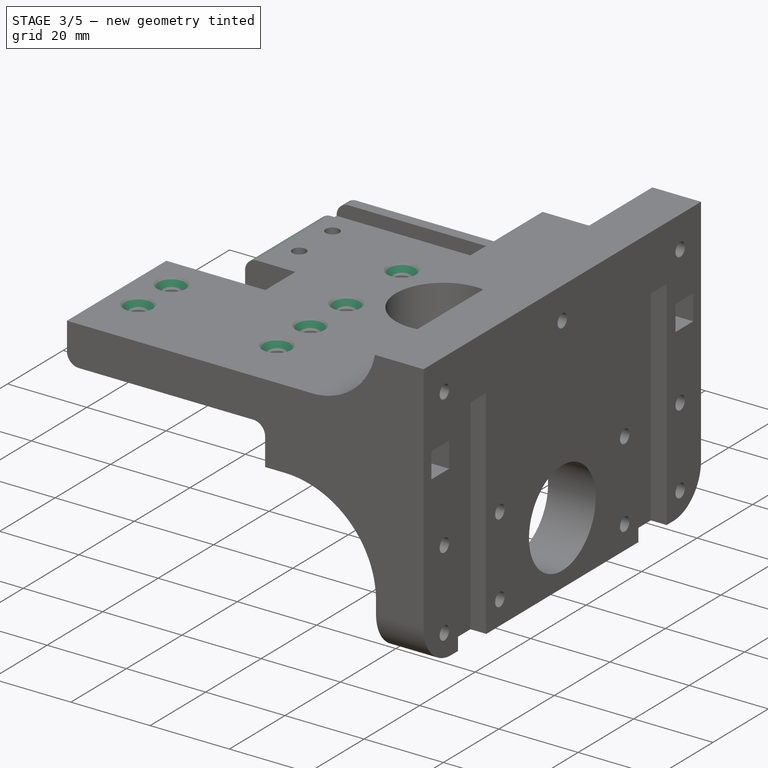
[diagram: stage 3 of 5 — iso view after this stage's code; geometry added in this stage tinted green]
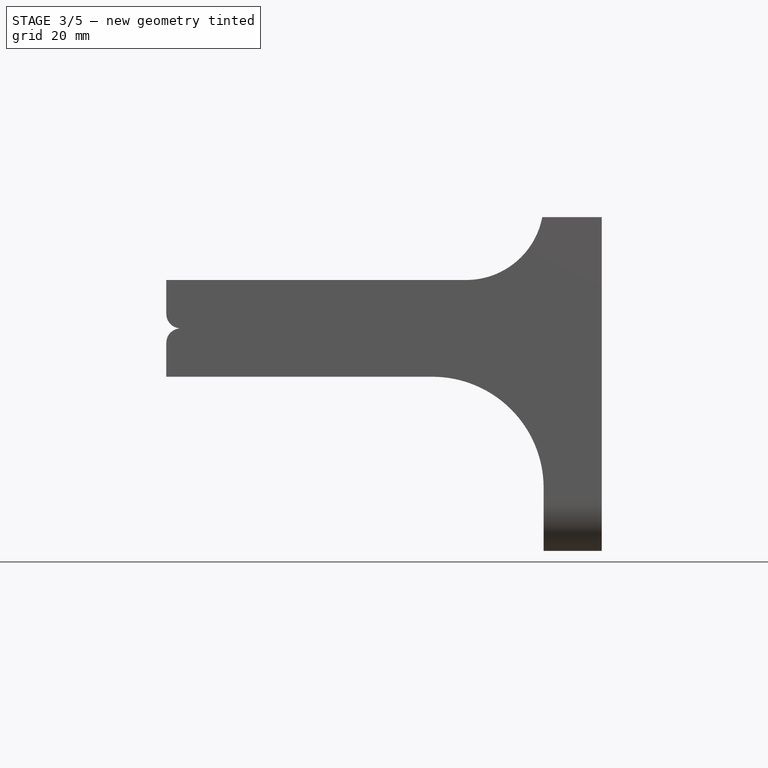
[diagram: stage 3 of 5 — front view after this stage's code; geometry added in this stage tinted green]
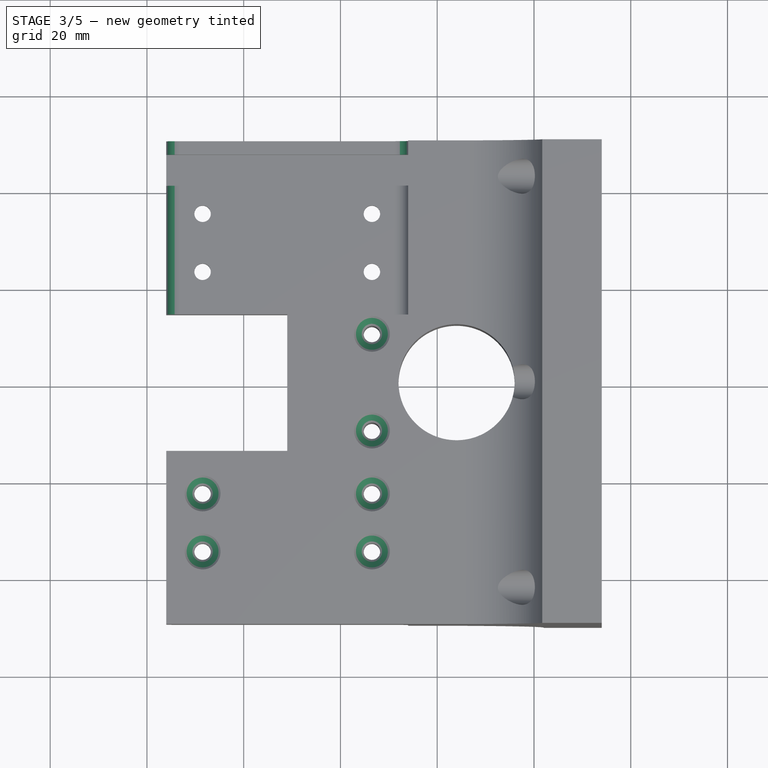
[diagram: stage 3 of 5 — top view after this stage's code; geometry added in this stage tinted green]
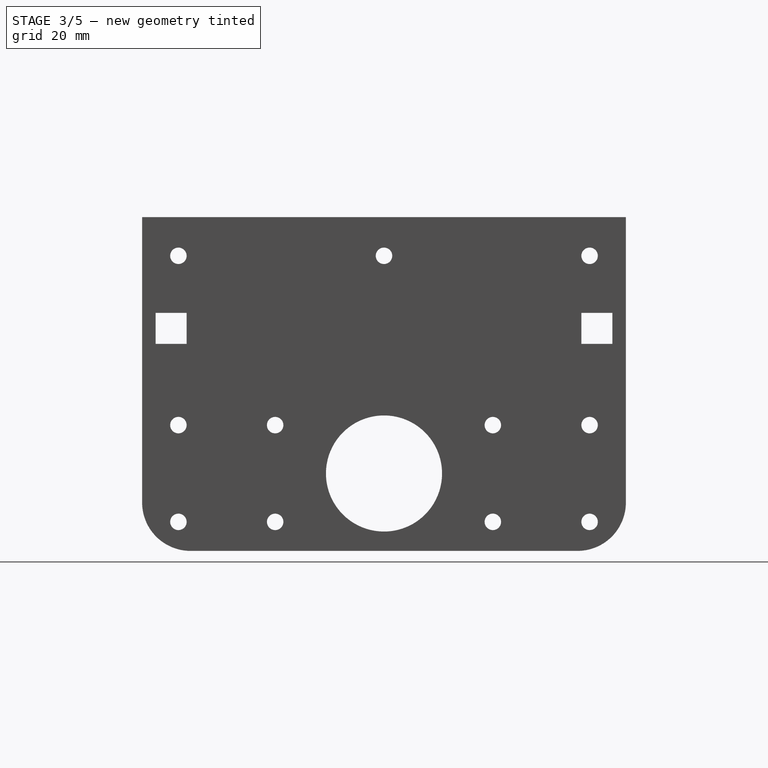
[diagram: stage 3 of 5 — right view after this stage's code; geometry added in this stage tinted green]
FEATURE [PartDesign::Fillet] Fillet005
  Base = -> Fillet004 [Edge8]
  Placement = pos=(-86,0,0) rot=(0.57735,-0.57735,-0.57735;2.0944rad)
  Radius = 3
FEATURE [PartDesign::Fillet] Fillet006
  Base = -> Fillet005 [Edge46]
  Placement = pos=(-86,0,0) rot=(0.57735,-0.57735,-0.57735;2.0944rad)
  Radius = 3
FEATURE [PartDesign::Fillet] Fillet007
  Base = -> Fillet006 [Edge56]
  Placement = pos=(-86,0,0) rot=(0.57735,-0.57735,-0.57735;2.0944rad)
  Radius = 3
FEATURE [PartDesign::Chamfer] Chamfer
  Base = -> Fillet007 [Edge46]
  Placement = pos=(-86,0,0) rot=(0.57735,-0.57735,-0.57735;2.0944rad)
  Size = 2
FEATURE [PartDesign::Chamfer] Chamfer001
  Base = -> Chamfer [Edge16]
  Placement = pos=(-86,0,0) rot=(0.57735,-0.57735,-0.57735;2.0944rad)
  Size = 2
FEATURE [PartDesign::Chamfer] Chamfer002
  Base = -> Chamfer001 [Edge15]
  Placement = pos=(-86,0,0) rot=(0.57735,-0.57735,-0.57735;2.0944rad)
  Size = 2
FEATURE [PartDesign::Chamfer] Chamfer003
  Base = -> Chamfer002 [Edge15]
  Placement = pos=(-86,0,0) rot=(0.57735,-0.57735,-0.57735;2.0944rad)
  Size = 2
FEATURE [PartDesign::Chamfer] Chamfer004
  Base = -> Chamfer003 [Edge16]
  Placement = pos=(-86,0,0) rot=(0.57735,-0.57735,-0.57735;2.0944rad)
  Size = 2
FEATURE [PartDesign::Chamfer] Chamfer005
  Base = -> Chamfer004 [Edge17]
  Placement = pos=(-86,0,0) rot=(0.57735,-0.57735,-0.57735;2.0944rad)
  Size = 2
FEATURE [PartDesign::Fillet] Fillet008
  Base = -> Chamfer005 [Edge41]
  Placement = pos=(-86,0,0) rot=(0.57735,-0.57735,-0.57735;2.0944rad)
  Radius = 10
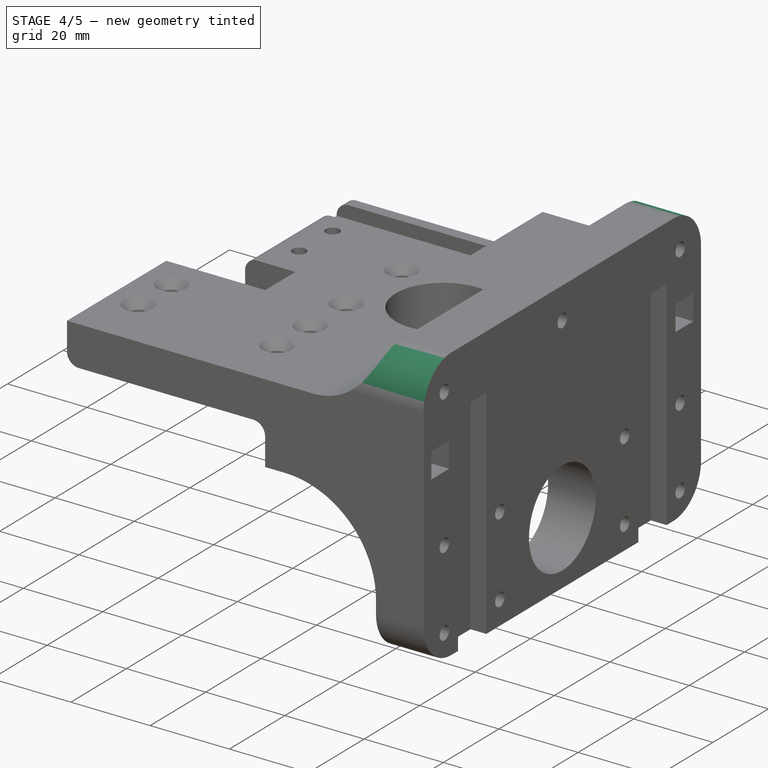
[diagram: stage 4 of 5 — iso view after this stage's code; geometry added in this stage tinted green]
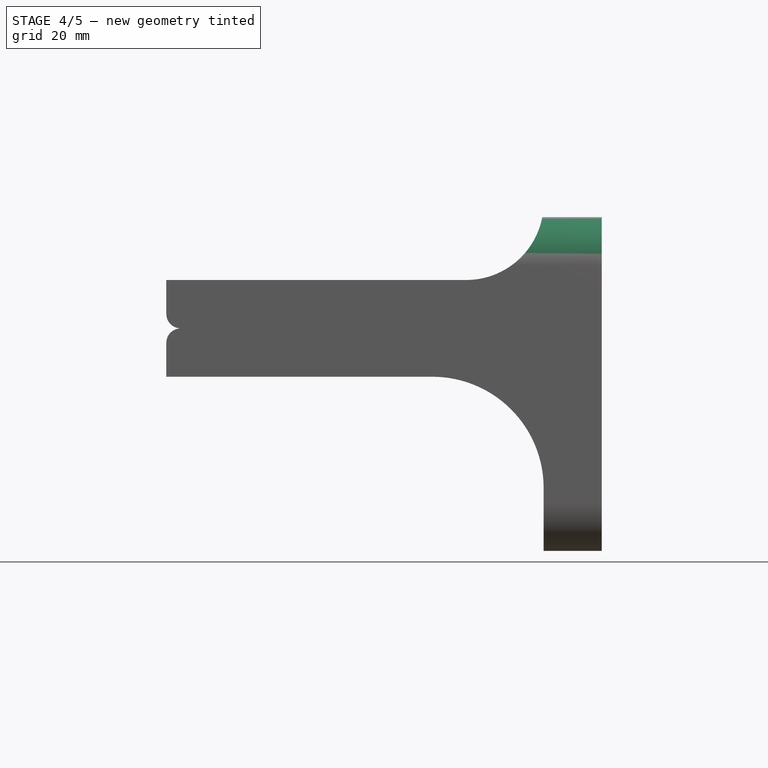
[diagram: stage 4 of 5 — front view after this stage's code; geometry added in this stage tinted green]
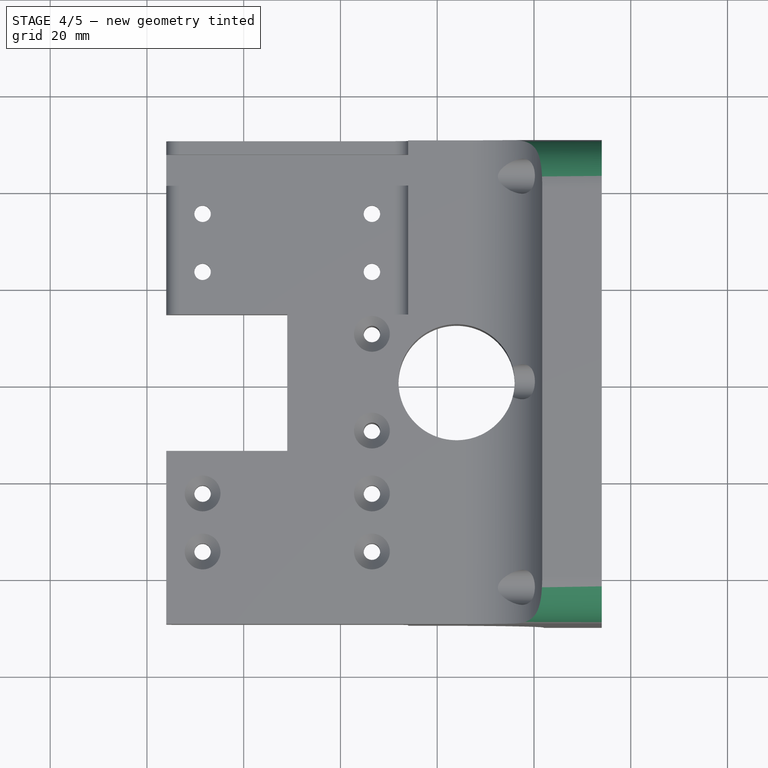
[diagram: stage 4 of 5 — top view after this stage's code; geometry added in this stage tinted green]
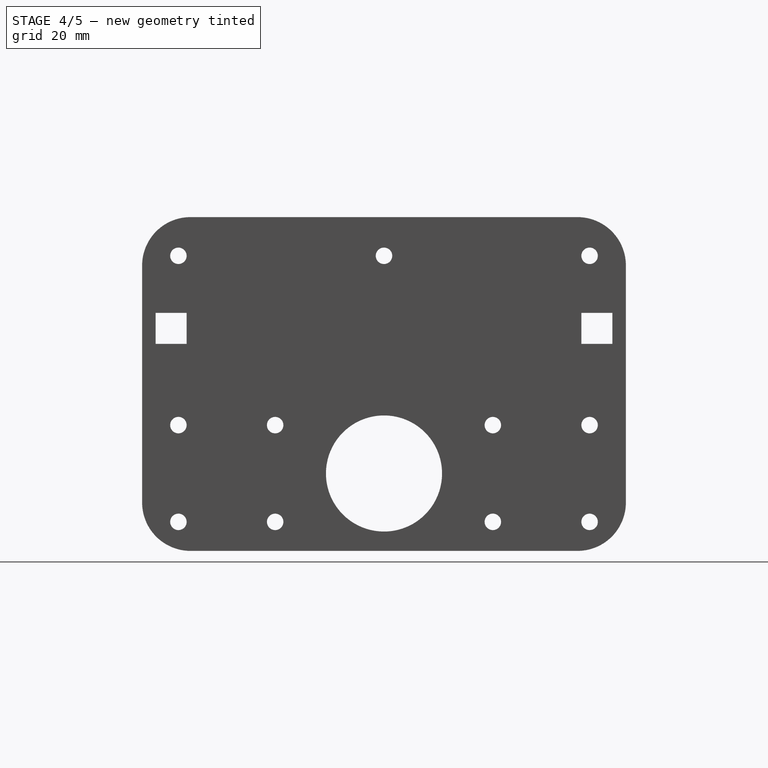
[diagram: stage 4 of 5 — right view after this stage's code; geometry added in this stage tinted green]
FEATURE [PartDesign::Fillet] Fillet009
  Base = -> Fillet008 [Edge6]
  Placement = pos=(-86,0,0) rot=(0.57735,-0.57735,-0.57735;2.0944rad)
  Radius = 10
FEATURE [PartDesign::Fillet] Fillet010
  Base = -> Fillet009 [Edge123]
  Placement = pos=(-86,0,0) rot=(0.57735,-0.57735,-0.57735;2.0944rad)
  Radius = 10
FEATURE [PartDesign::Chamfer] Chamfer006
  Base = -> Fillet010 [Edge112]
  Placement = pos=(-86,0,0) rot=(0.57735,-0.57735,-0.57735;2.0944rad)
  Size = 1.8
FEATURE [PartDesign::Chamfer] Chamfer007
  Base = -> Chamfer006 [Edge99]
  Placement = pos=(-86,0,0) rot=(0.57735,-0.57735,-0.57735;2.0944rad)
  Size = 1.8
FEATURE [PartDesign::Chamfer] Chamfer008
  Base = -> Chamfer007 [Edge147]
  Placement = pos=(-86,0,0) rot=(0.57735,-0.57735,-0.57735;2.0944rad)
  Size = 1.8
FEATURE [PartDesign::Chamfer] Chamfer009
  Base = -> Chamfer008 [Edge145]
  Placement = pos=(-86,0,0) rot=(0.57735,-0.57735,-0.57735;2.0944rad)
  Size = 1.8
FEATURE [PartDesign::Chamfer] Chamfer010
  Base = -> Chamfer009 [Edge97]
  Placement = pos=(-86,0,0) rot=(0.57735,-0.57735,-0.57735;2.0944rad)
  Size = 1.8
FEATURE [PartDesign::Chamfer] Chamfer011
  Base = -> Chamfer010 [Edge95]
  Placement = pos=(-86,0,0) rot=(0.57735,-0.57735,-0.57735;2.0944rad)
  Size = 1.8
FEATURE [PartDesign::Chamfer] Chamfer012
  Base = -> Chamfer011 [Edge145]
  Placement = pos=(-86,0,0) rot=(0.57735,-0.57735,-0.57735;2.0944rad)
  Size = 1.8
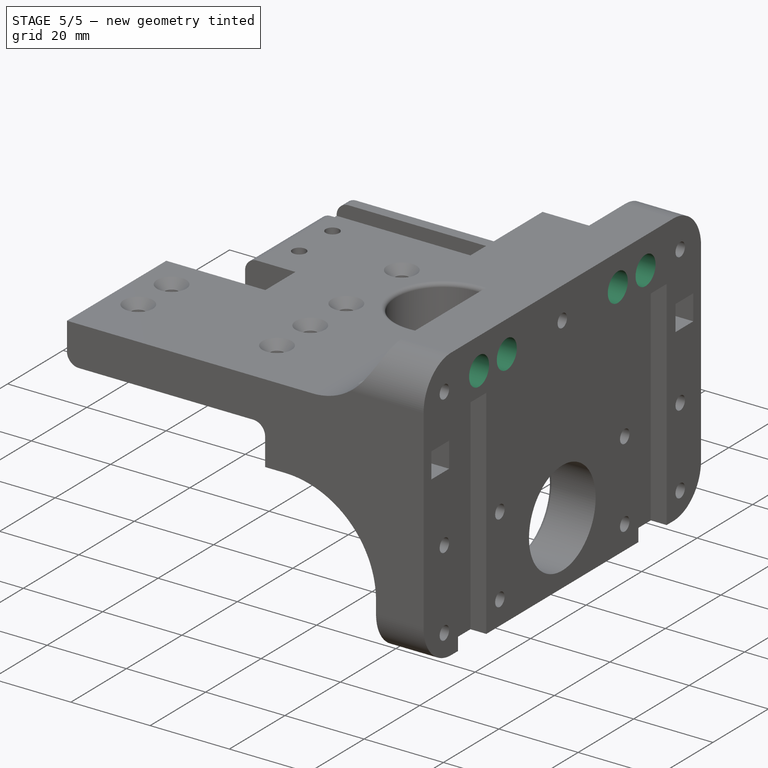
[diagram: stage 5 of 5 — iso view after this stage's code; geometry added in this stage tinted green]
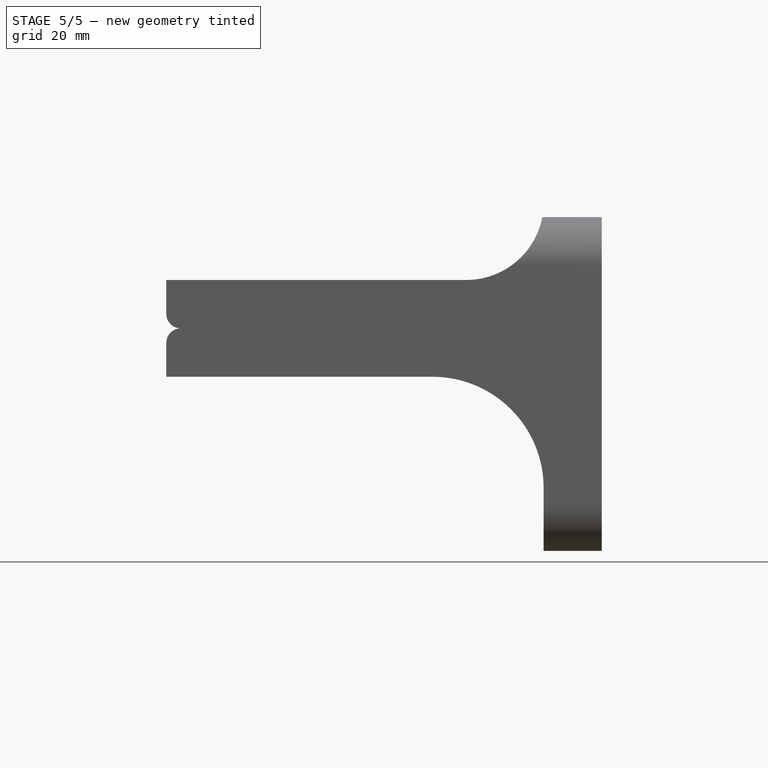
[diagram: stage 5 of 5 — front view after this stage's code; geometry added in this stage tinted green]
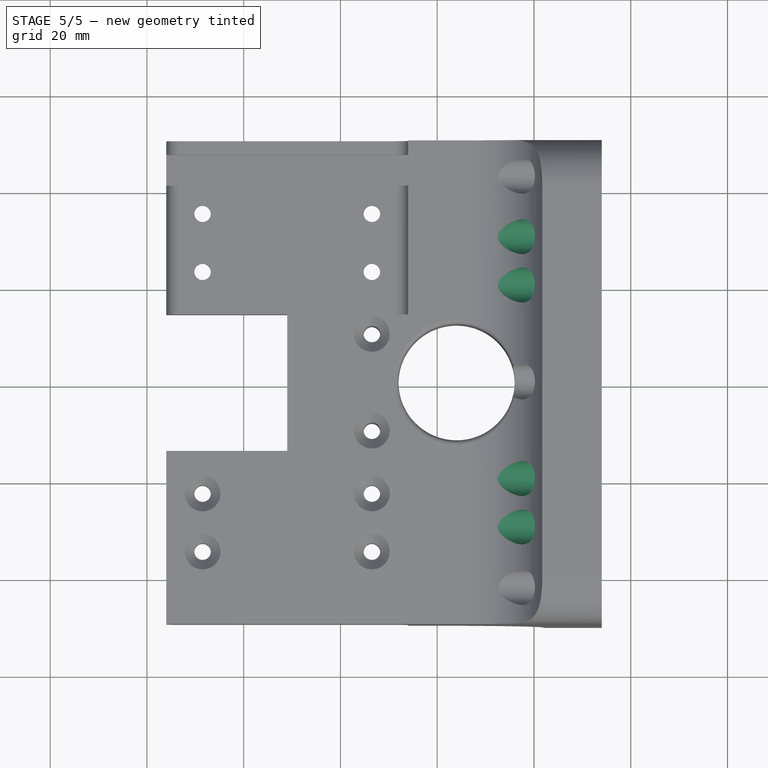
[diagram: stage 5 of 5 — top view after this stage's code; geometry added in this stage tinted green]
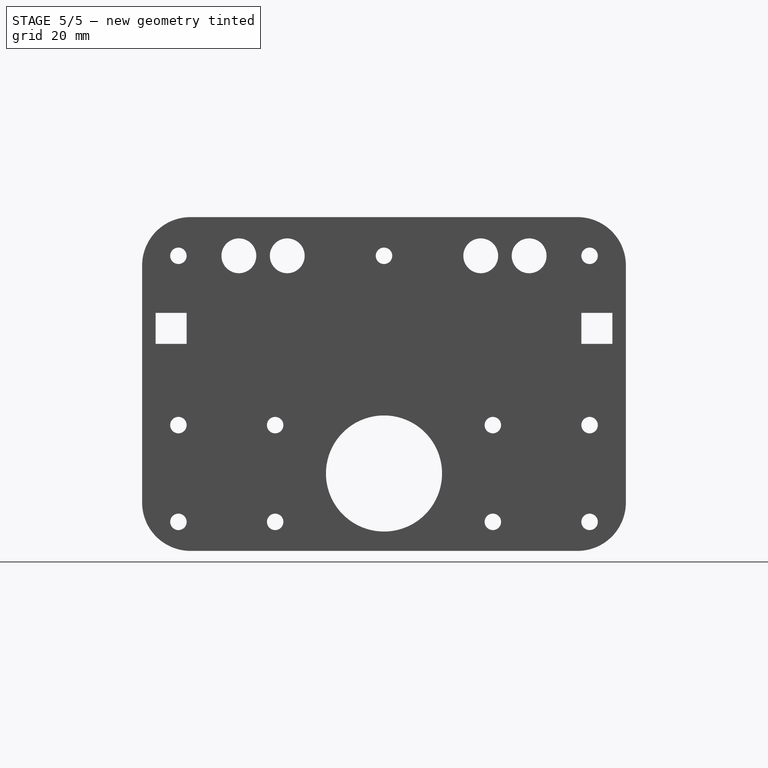
[diagram: stage 5 of 5 — right view after this stage's code; geometry added in this stage tinted green]
FEATURE [PartDesign::Chamfer] Chamfer013
  Base = -> Chamfer012 [Edge149]
  Placement = pos=(-86,0,0) rot=(0.57735,-0.57735,-0.57735;2.0944rad)
  Size = 1.8
FEATURE [PartDesign::Chamfer] Chamfer014
  Base = -> Chamfer013 [Edge127]
  Placement = pos=(-86,0,0) rot=(0.57735,-0.57735,-0.57735;2.0944rad)
  Size = 1.8
FEATURE [PartDesign::Chamfer] Chamfer015
  Base = -> Chamfer014 [Edge125]
  Placement = pos=(-86,0,0) rot=(0.57735,-0.57735,-0.57735;2.0944rad)
  Size = 1.8
FEATURE [PartDesign::Chamfer] Chamfer016
  Base = -> Chamfer015 [Edge123]
  Placement = pos=(-86,0,0) rot=(0.57735,-0.57735,-0.57735;2.0944rad)
  Size = 1.8
FEATURE [PartDesign::Fillet] Fillet011
  Base = -> Chamfer016 [Edge255]
  Placement = pos=(-86,0,0) rot=(0.57735,-0.57735,-0.57735;2.0944rad)
  Radius = 4
FEATURE [PartDesign::Fillet] Fillet012
  Base = -> Fillet011 [Edge24]
  Placement = pos=(-86,0,0) rot=(0.57735,-0.57735,-0.57735;2.0944rad)
  Radius = 1
FEATURE [PartDesign::Fillet] Fillet013
  Base = -> Fillet012 [Edge87]
  Placement = pos=(-86,0,0) rot=(0.57735,-0.57735,-0.57735;2.0944rad)
  Radius = 1
FEATURE [PartDesign::Fillet] Fillet014
  Base = -> Fillet013 [Edge199]
  Placement = pos=(-86,0,0) rot=(0.57735,-0.57735,-0.57735;2.0944rad)
  Radius = 1
FEATURE [Sketcher::SketchObject] Sketch018
  Placement = pos=(-86,0,0) rot=(-0.57735,0.57735,-0.57735;2.0944rad)
  Support = -> Fillet014 [Face27]
  sketch-geometry (9):
    g0: LineSegment [constr] StartX=-50 StartY=0 StartZ=0 EndX=50 EndY=0 EndZ=0
    g1: LineSegment [constr] StartX=50 StartY=0 StartZ=0 EndX=50 EndY=-29 EndZ=0
    g2: LineSegment [constr] StartX=50 StartY=-29 StartZ=0 EndX=-50 EndY=-29 EndZ=0
    g3: LineSegment [constr] StartX=-50 StartY=-29 StartZ=0 EndX=-50 EndY=0 EndZ=0
    g4: LineSegment [constr] StartX=-30 StartY=-21 StartZ=0 EndX=30 EndY=-21 EndZ=0
    g5: Circle CenterX=-30 CenterY=-21 CenterZ=0 NormalX=0 NormalY=0 NormalZ=1 Radius=3.6
    g6: Circle CenterX=-20 CenterY=-21 CenterZ=0 NormalX=0 NormalY=0 NormalZ=1 Radius=3.6
    g7: Circle CenterX=20 CenterY=-21 CenterZ=0 NormalX=0 NormalY=0 NormalZ=1 Radius=3.6
    g8: Circle CenterX=30 CenterY=-21 CenterZ=0 NormalX=0 NormalY=0 NormalZ=1 Radius=3.6
  constraints (25):
    c: Coincident(g0,g1)
    c: Coincident(g1,g2)
    c: Coincident(g2,g3)
    c: Coincident(g3,g0)
    c: Horizontal(g0)
    c: Horizontal(g2)
    c: Vertical(g1)
    c: Vertical(g3)
    c: PointOnObject(g0,g-1)
    c: Symmetric(g0,g0,g-1)
    c: DistanceX(g2,g2) = 100
    c: DistanceY(g1,g1) = 29
    c: DistanceY(g1,g4) = 8
    c: DistanceX(g4,g4) = 60
    c: Symmetric(g4,g4,g-2)
    c: Coincident(g5,g4)
    c: PointOnObject(g6,g4)
    c: PointOnObject(g7,g4)
    c: Coincident(g8,g4)
    c: Symmetric(g7,g6,g-2)
    c: DistanceX(g6,g7) = 40
    c: Radius(g5) = 3.6
    c: Equal(g5,g6)
    c: Equal(g5,g7)
    c: Equal(g5,g8)
FEATURE [PartDesign::Pocket] Pocket016
  Length = 5
  Placement = pos=(-86,0,0) rot=(0.57735,-0.57735,-0.57735;2.0944rad)
  Sketch = -> Sketch018
  Type = 1
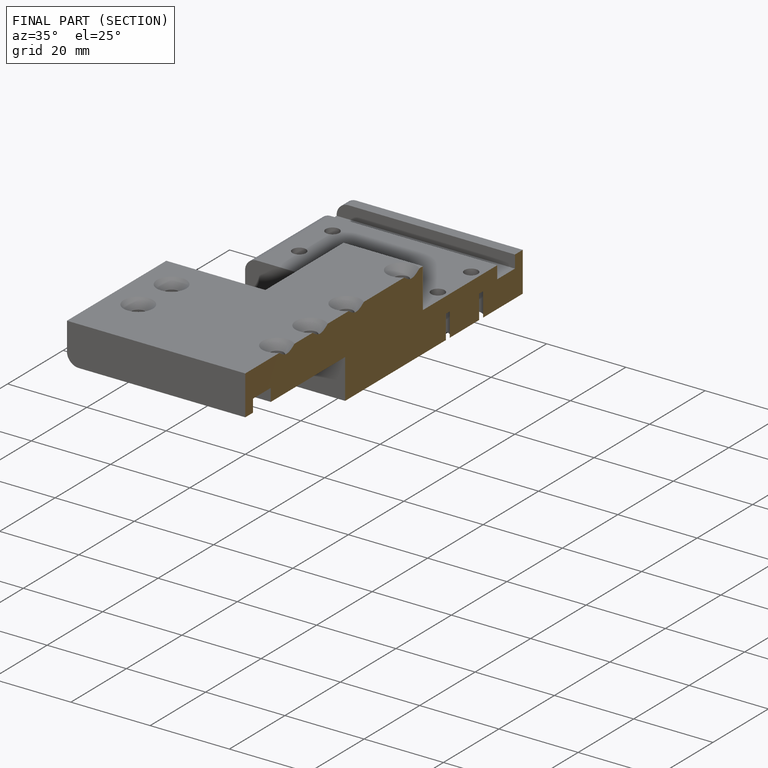
[diagram: finished part — half-section view (interior)]
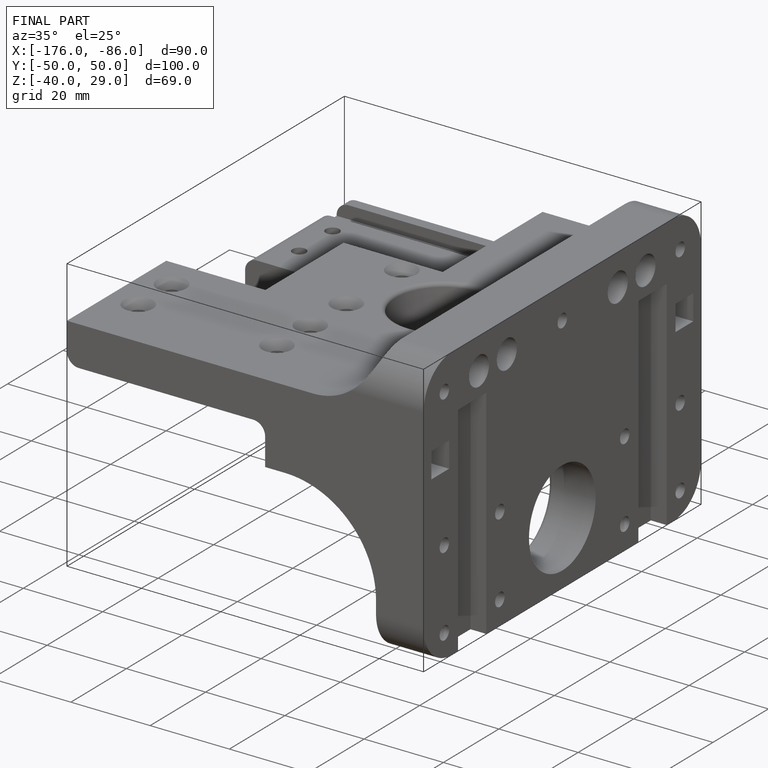
[diagram: finished part — iso view with bounding-box wireframe]
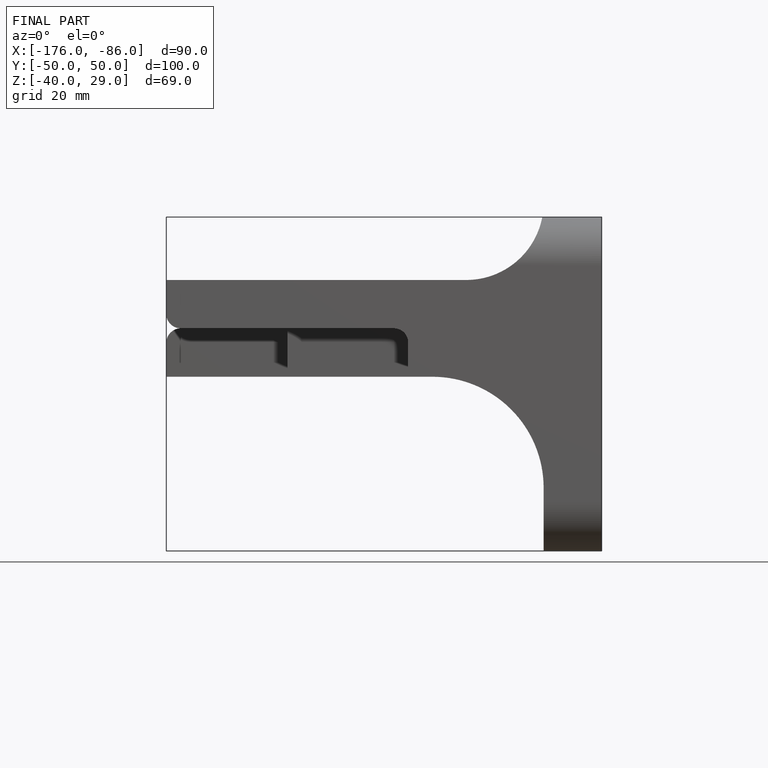
[diagram: finished part — front view with bounding-box wireframe]
